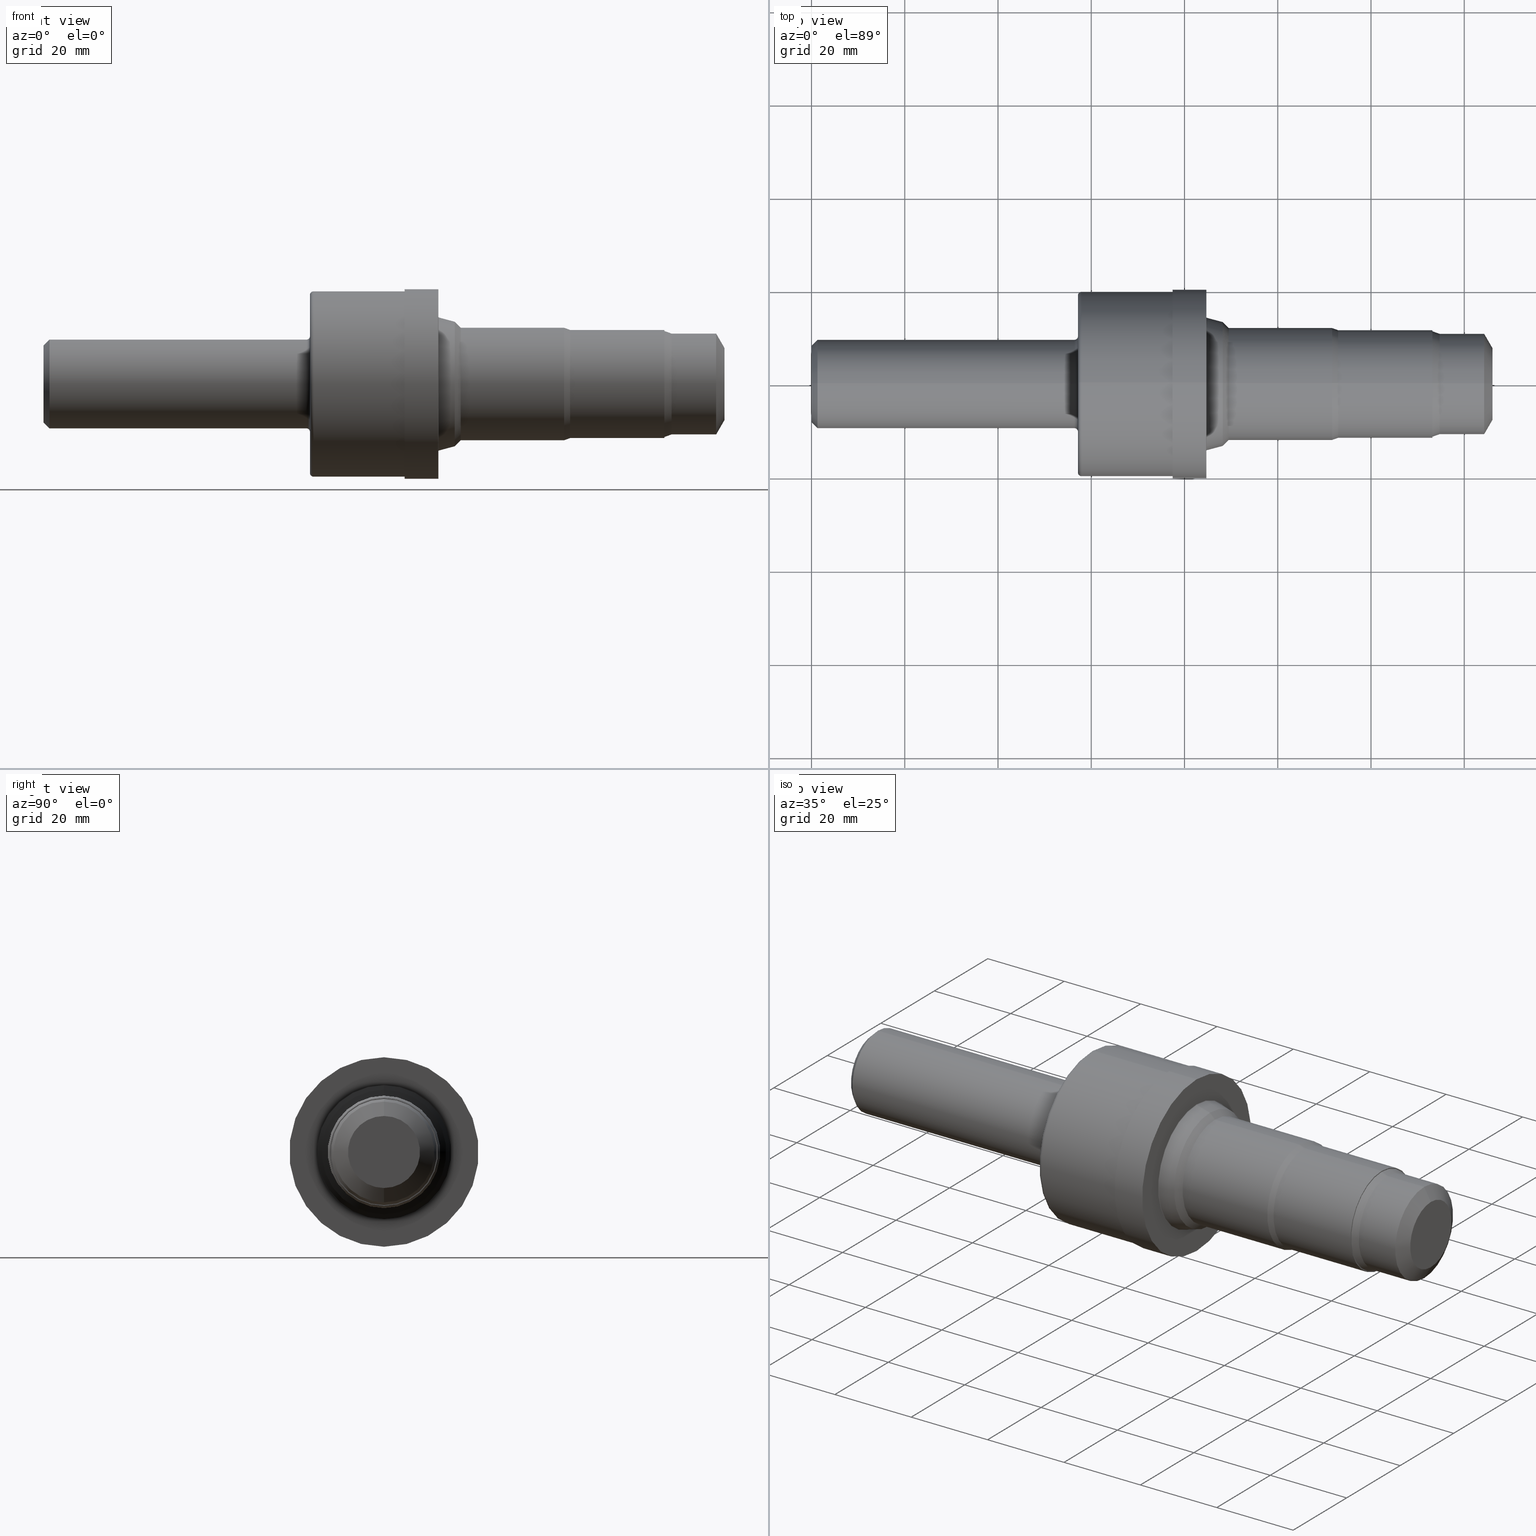
[diagram: canonical four-view strip — front | top / right | iso, engineering-drawing reading convention]
A machine part, canonical four-view strip (front | top / right | iso — engineering-drawing reading convention). The complete STEP part file that produces these views, byte-faithful:
ISO-10303-21;
HEADER;
FILE_DESCRIPTION (( 'STEP AP214' ),
    '1' );
FILE_NAME ('C12-3-ROUGH-X8.STEP',
    '2020-02-24T17:43:32',
    ( '' ),
    ( '' ),
    'SwSTEP 2.0',
    'SolidWorks 2018',
    '' );
FILE_SCHEMA (( 'AUTOMOTIVE_DESIGN' ));
ENDSEC;

DATA;
#1 = DIRECTION ( 'NONE',  ( 0.0000000000000000000, 0.0000000000000000000, 1.000000000000000000 ) ) ;
#2 = CARTESIAN_POINT ( 'NONE',  ( 0.05000000000000000278, 4.590588526603856213E-17, -0.3748500000000000165 ) ) ;
#3 = CARTESIAN_POINT ( 'NONE',  ( 5.750000000000000000, 0.0000000000000000000, 0.0000000000000000000 ) ) ;
#4 = EDGE_CURVE ( 'NONE', #400, #403, #378, .T. ) ;
#5 = DIRECTION ( 'NONE',  ( 0.0000000000000000000, 0.0000000000000000000, 1.000000000000000000 ) ) ;
#6 = ORIENTED_EDGE ( 'NONE', *, *, #958, .F. ) ;
#7 = AXIS2_PLACEMENT_3D ( 'NONE', #647, #249, #114 ) ;
#8 = VERTEX_POINT ( 'NONE', #755 ) ;
#9 = ORIENTED_EDGE ( 'NONE', *, *, #741, .F. ) ;
#10 = CARTESIAN_POINT ( 'NONE',  ( 2.220000000000000195, 0.0000000000000000000, 0.4048500000000005983 ) ) ;
#11 = CONICAL_SURFACE ( 'NONE', #480, 0.3041564434701778397, 1.047197551196600074 ) ;
#12 = VECTOR ( 'NONE', #179, 39.37007874015748854 ) ;
#13 = CARTESIAN_POINT ( 'NONE',  ( 5.679999999999999716, 5.209647483572839855E-17, -0.4254000000000000004 ) ) ;
#14 = ORIENTED_EDGE ( 'NONE', *, *, #136, .T. ) ;
#15 = ORIENTED_EDGE ( 'NONE', *, *, #291, .F. ) ;
#16 = CARTESIAN_POINT ( 'NONE',  ( 5.241999999999999105, 0.4563999999999999724, 0.0000000000000000000 ) ) ;
#17 = AXIS2_PLACEMENT_3D ( 'NONE', #3, #269, #274 ) ;
#18 = ADVANCED_FACE ( 'NONE', ( #177, #940 ), #560, .F. ) ;
#19 = ORIENTED_EDGE ( 'NONE', *, *, #942, .F. ) ;
#20 = FILL_AREA_STYLE ('',( #232 ) ) ;
#21 = LINE ( 'NONE', #558, #405 ) ;
#22 = DIRECTION ( 'NONE',  ( -1.000000000000000000, -0.0000000000000000000, -0.0000000000000000000 ) ) ;
#23 = CARTESIAN_POINT ( 'NONE',  ( 0.0000000000000000000, 0.0000000000000000000, 0.0000000000000000000 ) ) ;
#24 = CARTESIAN_POINT ( 'NONE',  ( 0.05000000000000000278, 4.590588526603853748E-17, 0.3748500000000000165 ) ) ;
#25 = ADVANCED_FACE ( 'NONE', ( #578 ), #915, .T. ) ;
#26 = EDGE_LOOP ( 'NONE', ( #633, #780, #216, #874 ) ) ;
#27 = DIRECTION ( 'NONE',  ( 1.000000000000000000, 0.0000000000000000000, 0.0000000000000000000 ) ) ;
#28 = ORIENTED_EDGE ( 'NONE', *, *, #419, .F. ) ;
#29 = ADVANCED_FACE ( 'NONE', ( #549 ), #359, .T. ) ;
#30 = VECTOR ( 'NONE', #409, 39.37007874015748854 ) ;
#31 = AXIS2_PLACEMENT_3D ( 'NONE', #782, #341, #856 ) ;
#32 = CARTESIAN_POINT ( 'NONE',  ( 3.339558857161730288, 0.0000000000000000000, 0.0000000000000000000 ) ) ;
#33 = DIRECTION ( 'NONE',  ( 0.0000000000000000000, 0.0000000000000000000, 1.000000000000000000 ) ) ;
#34 = ORIENTED_EDGE ( 'NONE', *, *, #471, .T. ) ;
#35 = ADVANCED_FACE ( 'NONE', ( #150 ), #273, .T. ) ;
#36 = CARTESIAN_POINT ( 'NONE',  ( 5.303999999999998494, 0.0000000000000000000, 0.4254000000000000004 ) ) ;
#37 = ADVANCED_FACE ( 'NONE', ( #743 ), #650, .T. ) ;
#38 = DIRECTION ( 'NONE',  ( 1.000000000000000000, 0.0000000000000000000, 0.0000000000000000000 ) ) ;
#39 = ADVANCED_FACE ( 'NONE', ( #329 ), #246, .F. ) ;
#40 = ADVANCED_FACE ( 'NONE', ( #726 ), #245, .T. ) ;
#41 = DIRECTION ( 'NONE',  ( 0.0000000000000000000, 0.0000000000000000000, 1.000000000000000000 ) ) ;
#42 = ADVANCED_FACE ( 'NONE', ( #836 ), #422, .T. ) ;
#43 = ORIENTED_EDGE ( 'NONE', *, *, #716, .T. ) ;
#44 = ADVANCED_FACE ( 'NONE', ( #466 ), #11, .T. ) ;
#45 = CARTESIAN_POINT ( 'NONE',  ( 5.241999999999999105, 5.589287991308519741E-17, -0.4563999999999999724 ) ) ;
#46 = AXIS2_PLACEMENT_3D ( 'NONE', #536, #446, #852 ) ;
#47 = TOROIDAL_SURFACE ( 'NONE', #211, 0.5685049524098423346, 0.007499999999999629359 ) ;
#48 = CIRCLE ( 'NONE', #208, 0.4563999999999999724 ) ;
#49 = ADVANCED_FACE ( 'NONE', ( #617 ), #75, .F. ) ;
#50 = AXIS2_PLACEMENT_3D ( 'NONE', #239, #757, #313 ) ;
#51 = EDGE_LOOP ( 'NONE', ( #924, #791 ) ) ;
#52 = ORIENTED_EDGE ( 'NONE', *, *, #445, .F. ) ;
#53 = ADVANCED_FACE ( 'NONE', ( #220 ), #47, .F. ) ;
#54 = ADVANCED_FACE ( 'NONE', ( #597 ), #431, .F. ) ;
#55 = CARTESIAN_POINT ( 'NONE',  ( 0.0000000000000000000, 0.0000000000000000000, 0.8000000000000000444 ) ) ;
#56 = LINE ( 'NONE', #717, #818 ) ;
#57 = EDGE_CURVE ( 'NONE', #512, #709, #441, .T. ) ;
#58 = ADVANCED_FACE ( 'NONE', ( #794 ), #765, .T. ) ;
#59 = DIRECTION ( 'NONE',  ( -1.000000000000000000, -0.0000000000000000000, -0.0000000000000000000 ) ) ;
#60 = CARTESIAN_POINT ( 'NONE',  ( 5.750000000000000000, 0.0000000000000000000, 0.0000000000000000000 ) ) ;
#61 = ADVANCED_FACE ( 'NONE', ( #395 ), #935, .T. ) ;
#62 = LINE ( 'NONE', #181, #30 ) ;
#63 = ADVANCED_FACE ( 'NONE', ( #952 ), #546, .T. ) ;
#64 = PRESENTATION_LAYER_ASSIGNMENT (  '', '', ( #76 ) ) ;
#65 = DIRECTION ( 'NONE',  ( -1.000000000000000000, -0.0000000000000000000, -0.0000000000000000000 ) ) ;
#66 = EDGE_CURVE ( 'NONE', #403, #400, #738, .T. ) ;
#67 = ORIENTED_EDGE ( 'NONE', *, *, #784, .T. ) ;
#68 = ADVANCED_FACE ( 'NONE', ( #812, #198 ), #315, .F. ) ;
#69 = SURFACE_STYLE_FILL_AREA ( #20 ) ;
#70 = ADVANCED_FACE ( 'NONE', ( #374 ), #910, .T. ) ;
#71 = EDGE_CURVE ( 'NONE', #742, #613, #147, .T. ) ;
#72 = ADVANCED_FACE ( 'NONE', ( #174 ), #325, .T. ) ;
#73 = ORIENTED_EDGE ( 'NONE', *, *, #888, .F. ) ;
#74 = CARTESIAN_POINT ( 'NONE',  ( 5.241999999999999105, 0.0000000000000000000, 0.0000000000000000000 ) ) ;
#75 = TOROIDAL_SURFACE ( 'NONE', #636, 0.4048500000000005983, 0.02999999999999995379 ) ;
#76 = STYLED_ITEM ( 'NONE', ( #235 ), #634 ) ;
#77 = ORIENTED_EDGE ( 'NONE', *, *, #803, .T. ) ;
#78 = LINE ( 'NONE', #55, #841 ) ;
#79 = AXIS2_PLACEMENT_3D ( 'NONE', #165, #168, #228 ) ;
#80 = AXIS2_PLACEMENT_3D ( 'NONE', #250, #282, #209 ) ;
#81 = ORIENTED_EDGE ( 'NONE', *, *, #811, .T. ) ;
#82 = ORIENTED_EDGE ( 'NONE', *, *, #419, .T. ) ;
#83 = VECTOR ( 'NONE', #840, 39.37007874015748143 ) ;
#84 = DIRECTION ( 'NONE',  ( 0.0000000000000000000, 0.0000000000000000000, 1.000000000000000000 ) ) ;
#85 = DIRECTION ( 'NONE',  ( 0.0000000000000000000, 0.0000000000000000000, 1.000000000000000000 ) ) ;
#86 = ADVANCED_FACE ( 'NONE', ( #574 ), #503, .T. ) ;
#87 = CARTESIAN_POINT ( 'NONE',  ( 4.447103080001856945, 0.0000000000000000000, 0.0000000000000000000 ) ) ;
#88 = CARTESIAN_POINT ( 'NONE',  ( 0.0000000000000000000, 0.0000000000000000000, 0.4254000000000000004 ) ) ;
#89 = DIRECTION ( 'NONE',  ( -0.0000000000000000000, 0.0000000000000000000, 1.000000000000000000 ) ) ;
#90 = EDGE_LOOP ( 'NONE', ( #443, #815, #224, #838 ) ) ;
#91 = CIRCLE ( 'NONE', #672, 0.4048500000000005983 ) ;
#92 = CARTESIAN_POINT ( 'NONE',  ( 5.679999999999999716, 0.0000000000000000000, 0.0000000000000000000 ) ) ;
#93 = CARTESIAN_POINT ( 'NONE',  ( 3.334000000000000075, 0.0000000000000000000, 0.0000000000000000000 ) ) ;
#94 = DIRECTION ( 'NONE',  ( 0.0000000000000000000, 0.0000000000000000000, -1.000000000000000000 ) ) ;
#95 = AXIS2_PLACEMENT_3D ( 'NONE', #582, #59, #430 ) ;
#96 = DIRECTION ( 'NONE',  ( -1.000000000000000000, -0.0000000000000000000, -0.0000000000000000000 ) ) ;
#97 = ADVANCED_FACE ( 'NONE', ( #723 ), #357, .T. ) ;
#98 = DIRECTION ( 'NONE',  ( -1.000000000000000000, -0.0000000000000000000, -0.0000000000000000000 ) ) ;
#99 = DIRECTION ( 'NONE',  ( 0.0000000000000000000, 0.0000000000000000000, 1.000000000000000000 ) ) ;
#100 = ADVANCED_FACE ( 'NONE', ( #702 ), #115, .T. ) ;
#101 = CARTESIAN_POINT ( 'NONE',  ( 0.0000000000000000000, 0.0000000000000000000, 0.0000000000000000000 ) ) ;
#102 = CARTESIAN_POINT ( 'NONE',  ( 2.250000000000000000, 0.0000000000000000000, 0.4048500000000005983 ) ) ;
#103 = DIRECTION ( 'NONE',  ( -1.000000000000000000, -0.0000000000000000000, -0.0000000000000000000 ) ) ;
#104 = ORIENTED_EDGE ( 'NONE', *, *, #338, .F. ) ;
#105 = AXIS2_PLACEMENT_3D ( 'NONE', #793, #355, #276 ) ;
#106 = ORIENTED_EDGE ( 'NONE', *, *, #610, .F. ) ;
#107 = EDGE_CURVE ( 'NONE', #437, #318, #882, .T. ) ;
#108 = CARTESIAN_POINT ( 'NONE',  ( 3.048999999999999488, 0.0000000000000000000, 0.8000000000000000444 ) ) ;
#109 = CONICAL_SURFACE ( 'NONE', #105, 0.4563999999999999724, 0.3490658503988593453 ) ;
#110 = DIRECTION ( 'NONE',  ( -1.000000000000000000, -0.0000000000000000000, -0.0000000000000000000 ) ) ;
#111 = CARTESIAN_POINT ( 'NONE',  ( 0.05000000000000000278, 0.0000000000000000000, 0.3748500000000000165 ) ) ;
#112 = CYLINDRICAL_SURFACE ( 'NONE', #963, 0.4749999999999999778 ) ;
#113 = EDGE_LOOP ( 'NONE', ( #328, #180 ) ) ;
#114 = DIRECTION ( 'NONE',  ( -0.0000000000000000000, 0.0000000000000000000, 1.000000000000000000 ) ) ;
#115 = CYLINDRICAL_SURFACE ( 'NONE', #361, 0.7825000000000000844 ) ;
#116 = VERTEX_POINT ( 'NONE', #13 ) ;
#117 = VECTOR ( 'NONE', #972, 39.37007874015748143 ) ;
#118 = CARTESIAN_POINT ( 'NONE',  ( 0.0000000000000000000, 0.0000000000000000000, 0.0000000000000000000 ) ) ;
#119 = VERTEX_POINT ( 'NONE', #108 ) ;
#120 = AXIS2_PLACEMENT_3D ( 'NONE', #971, #828, #749 ) ;
#121 = ORIENTED_EDGE ( 'NONE', *, *, #254, .T. ) ;
#122 = CARTESIAN_POINT ( 'NONE',  ( 0.0000000000000000000, 0.0000000000000000000, 0.0000000000000000000 ) ) ;
#123 = EDGE_CURVE ( 'NONE', #231, #164, #522, .T. ) ;
#124 = DIRECTION ( 'NONE',  ( -1.000000000000000000, -0.0000000000000000000, -0.0000000000000000000 ) ) ;
#125 = DIRECTION ( 'NONE',  ( -1.000000000000000000, -0.0000000000000000000, -0.0000000000000000000 ) ) ;
#126 = EDGE_LOOP ( 'NONE', ( #463, #121 ) ) ;
#127 = DIRECTION ( 'NONE',  ( -1.000000000000000000, -0.0000000000000000000, -0.0000000000000000000 ) ) ;
#128 = EDGE_LOOP ( 'NONE', ( #929, #367, #566, #756 ) ) ;
#129 = DIRECTION ( 'NONE',  ( 0.0000000000000000000, 0.0000000000000000000, 1.000000000000000000 ) ) ;
#130 = CIRCLE ( 'NONE', #306, 0.5257730114445050562 ) ;
#131 = CARTESIAN_POINT ( 'NONE',  ( 0.0000000000000000000, 0.0000000000000000000, 0.0000000000000000000 ) ) ;
#132 = ORIENTED_EDGE ( 'NONE', *, *, #888, .T. ) ;
#133 = DIRECTION ( 'NONE',  ( 0.0000000000000000000, 0.0000000000000000000, 1.000000000000000000 ) ) ;
#134 = VECTOR ( 'NONE', #839, 39.37007874015748143 ) ;
#135 = CIRCLE ( 'NONE', #162, 0.4749999999999999778 ) ;
#136 = EDGE_CURVE ( 'NONE', #231, #949, #868, .T. ) ;
#137 = CIRCLE ( 'NONE', #580, 0.5685049524098423346 ) ;
#138 = AXIS2_PLACEMENT_3D ( 'NONE', #101, #616, #467 ) ;
#139 = CONICAL_SURFACE ( 'NONE', #382, 0.3748500000000000165, 0.7853981633974470578 ) ;
#140 = ORIENTED_EDGE ( 'NONE', *, *, #373, .T. ) ;
#141 = CARTESIAN_POINT ( 'NONE',  ( 0.0000000000000000000, 4.284426826817016124E-17, 0.3248500000000001386 ) ) ;
#142 = EDGE_LOOP ( 'NONE', ( #196, #732, #951, #371 ) ) ;
#143 = AXIS2_PLACEMENT_3D ( 'NONE', #240, #225, #84 ) ;
#144 = CARTESIAN_POINT ( 'NONE',  ( 3.522773011444504387, 5.817072295949927179E-17, -0.4749999999999999778 ) ) ;
#145 = EDGE_CURVE ( 'NONE', #810, #275, #285, .T. ) ;
#146 = ORIENTED_EDGE ( 'NONE', *, *, #511, .F. ) ;
#147 = CIRCLE ( 'NONE', #664, 0.3041564434701778397 ) ;
#148 = LINE ( 'NONE', #303, #724 ) ;
#149 = EDGE_CURVE ( 'NONE', #641, #450, #677, .T. ) ;
#150 = FACE_OUTER_BOUND ( 'NONE', #586, .T. ) ;
#151 = CARTESIAN_POINT ( 'NONE',  ( 3.048999999999999488, 9.582861203328039197E-17, -0.7825000000000000844 ) ) ;
#152 = CIRCLE ( 'NONE', #632, 0.4749999999999999778 ) ;
#153 = CARTESIAN_POINT ( 'NONE',  ( 5.241999999999999105, 0.0000000000000000000, 0.0000000000000000000 ) ) ;
#154 = AXIS2_PLACEMENT_3D ( 'NONE', #481, #27, #849 ) ;
#155 = CARTESIAN_POINT ( 'NONE',  ( 2.250000000000000000, 0.7525000000000000577, 0.0000000000000000000 ) ) ;
#156 = ORIENTED_EDGE ( 'NONE', *, *, #248, .T. ) ;
#157 = CYLINDRICAL_SURFACE ( 'NONE', #669, 0.8000000000000000444 ) ;
#158 = DIRECTION ( 'NONE',  ( 0.0000000000000000000, 0.0000000000000000000, 1.000000000000000000 ) ) ;
#159 = ORIENTED_EDGE ( 'NONE', *, *, #551, .F. ) ;
#160 = SHAPE_DEFINITION_REPRESENTATION ( #305, #634 ) ;
#161 = CARTESIAN_POINT ( 'NONE',  ( 4.447103080001856945, 0.0000000000000000000, 0.0000000000000000000 ) ) ;
#162 = AXIS2_PLACEMENT_3D ( 'NONE', #554, #372, #964 ) ;
#163 = ADVANCED_FACE ( 'NONE', ( #659, #302 ), #627, .F. ) ;
#164 = VERTEX_POINT ( 'NONE', #111 ) ;
#165 = CARTESIAN_POINT ( 'NONE',  ( 3.471999999999999531, 0.0000000000000000000, 0.0000000000000000000 ) ) ;
#166 = EDGE_CURVE ( 'NONE', #742, #116, #259, .T. ) ;
#167 = CARTESIAN_POINT ( 'NONE',  ( 3.471999999999999531, 0.0000000000000000000, 0.0000000000000000000 ) ) ;
#168 = DIRECTION ( 'NONE',  ( -1.000000000000000000, -0.0000000000000000000, -0.0000000000000000000 ) ) ;
#169 = PLANE ( 'NONE',  #7 ) ;
#170 = DIRECTION ( 'NONE',  ( 1.000000000000000000, 0.0000000000000000000, 0.0000000000000000000 ) ) ;
#171 = DIRECTION ( 'NONE',  ( 0.0000000000000000000, 0.0000000000000000000, 1.000000000000000000 ) ) ;
#172 = CARTESIAN_POINT ( 'NONE',  ( 3.334000000000000075, 0.0000000000000000000, 0.0000000000000000000 ) ) ;
#173 = EDGE_LOOP ( 'NONE', ( #661, #854, #666, #490 ) ) ;
#174 = FACE_OUTER_BOUND ( 'NONE', #416, .T. ) ;
#175 = CIRCLE ( 'NONE', #761, 0.02999999999999995379 ) ;
#176 = CARTESIAN_POINT ( 'NONE',  ( 5.241999999999999105, 0.0000000000000000000, 0.4563999999999999724 ) ) ;
#177 = FACE_BOUND ( 'NONE', #601, .T. ) ;
#178 = AXIS2_PLACEMENT_3D ( 'NONE', #930, #491, #41 ) ;
#179 = DIRECTION ( 'NONE',  ( 0.7071067811865483499, 8.659560562354922997E-17, 0.7071067811865465735 ) ) ;
#180 = ORIENTED_EDGE ( 'NONE', *, *, #71, .F. ) ;
#181 = CARTESIAN_POINT ( 'NONE',  ( 3.471999999999999531, 6.438862355435778537E-17, -0.5257730114445050562 ) ) ;
#182 = CIRCLE ( 'NONE', #345, 0.4563999999999999724 ) ;
#183 = DIRECTION ( 'NONE',  ( -1.000000000000000000, -0.0000000000000000000, -0.0000000000000000000 ) ) ;
#184 = DIRECTION ( 'NONE',  ( -1.000000000000000000, -0.0000000000000000000, -0.0000000000000000000 ) ) ;
#185 = AXIS2_PLACEMENT_3D ( 'NONE', #872, #607, #869 ) ;
#186 = ORIENTED_EDGE ( 'NONE', *, *, #291, .T. ) ;
#187 = DIRECTION ( 'NONE',  ( 0.0000000000000000000, 0.0000000000000000000, 1.000000000000000000 ) ) ;
#188 = DIRECTION ( 'NONE',  ( 0.0000000000000000000, 0.0000000000000000000, 1.000000000000000000 ) ) ;
#189 = ORIENTED_EDGE ( 'NONE', *, *, #497, .T. ) ;
#190 = DIRECTION ( 'NONE',  ( -1.000000000000000000, -0.0000000000000000000, -0.0000000000000000000 ) ) ;
#191 =( GEOMETRIC_REPRESENTATION_CONTEXT ( 3 ) GLOBAL_UNCERTAINTY_ASSIGNED_CONTEXT ( ( #300 ) ) GLOBAL_UNIT_ASSIGNED_CONTEXT ( ( #651, #399, #465 ) ) REPRESENTATION_CONTEXT ( 'NONE', 'WORKASPACE' ) );
#192 = ORIENTED_EDGE ( 'NONE', *, *, #697, .T. ) ;
#193 = DIRECTION ( 'NONE',  ( -1.000000000000000000, -0.0000000000000000000, -0.0000000000000000000 ) ) ;
#194 = CARTESIAN_POINT ( 'NONE',  ( 3.522773011444504387, 0.0000000000000000000, 0.0000000000000000000 ) ) ;
#195 = DIRECTION ( 'NONE',  ( -1.000000000000000000, -0.0000000000000000000, -0.0000000000000000000 ) ) ;
#196 = ORIENTED_EDGE ( 'NONE', *, *, #462, .F. ) ;
#197 = EDGE_CURVE ( 'NONE', #709, #512, #452, .T. ) ;
#198 = FACE_OUTER_BOUND ( 'NONE', #126, .T. ) ;
#199 = CIRCLE ( 'NONE', #461, 0.4254000000000000004 ) ;
#200 = DIRECTION ( 'NONE',  ( 0.0000000000000000000, -1.000000000000000000, 0.0000000000000000000 ) ) ;
#201 = EDGE_LOOP ( 'NONE', ( #192, #758 ) ) ;
#202 = EDGE_LOOP ( 'NONE', ( #146, #657, #605, #81 ) ) ;
#203 = CARTESIAN_POINT ( 'NONE',  ( 4.447103080001856945, 0.0000000000000000000, 0.4563999999999999724 ) ) ;
#204 = DIRECTION ( 'NONE',  ( -1.000000000000000000, -0.0000000000000000000, -0.0000000000000000000 ) ) ;
#205 = EDGE_CURVE ( 'NONE', #949, #934, #638, .T. ) ;
#206 = VECTOR ( 'NONE', #705, 39.37007874015748854 ) ;
#207 = EDGE_LOOP ( 'NONE', ( #468, #670, #104, #296 ) ) ;
#208 = AXIS2_PLACEMENT_3D ( 'NONE', #161, #127, #451 ) ;
#209 = DIRECTION ( 'NONE',  ( 0.0000000000000000000, 0.0000000000000000000, 1.000000000000000000 ) ) ;
#210 = FACE_OUTER_BOUND ( 'NONE', #128, .T. ) ;
#211 = AXIS2_PLACEMENT_3D ( 'NONE', #529, #833, #540 ) ;
#212 = ORIENTED_EDGE ( 'NONE', *, *, #532, .F. ) ;
#213 = AXIS2_PLACEMENT_3D ( 'NONE', #653, #200, #719 ) ;
#214 = EDGE_CURVE ( 'NONE', #8, #403, #62, .T. ) ;
#215 = CARTESIAN_POINT ( 'NONE',  ( 2.250000000000000000, 0.0000000000000000000, 0.0000000000000000000 ) ) ;
#216 = ORIENTED_EDGE ( 'NONE', *, *, #721, .T. ) ;
#217 = EDGE_LOOP ( 'NONE', ( #353, #706, #939, #28 ) ) ;
#218 = VERTEX_POINT ( 'NONE', #557 ) ;
#219 = AXIS2_PLACEMENT_3D ( 'NONE', #718, #125, #129 ) ;
#220 = FACE_OUTER_BOUND ( 'NONE', #594, .T. ) ;
#221 = DIRECTION ( 'NONE',  ( -1.000000000000000000, -0.0000000000000000000, -0.0000000000000000000 ) ) ;
#222 = LINE ( 'NONE', #24, #12 ) ;
#223 = ADVANCED_FACE ( 'NONE', ( #806 ), #781, .T. ) ;
#224 = ORIENTED_EDGE ( 'NONE', *, *, #57, .F. ) ;
#225 = DIRECTION ( 'NONE',  ( -1.000000000000000000, -0.0000000000000000000, -0.0000000000000000000 ) ) ;
#226 = AXIS2_PLACEMENT_3D ( 'NONE', #281, #800, #866 ) ;
#227 = LINE ( 'NONE', #826, #944 ) ;
#228 = DIRECTION ( 'NONE',  ( 0.0000000000000000000, 0.0000000000000000000, 1.000000000000000000 ) ) ;
#229 = ORIENTED_EDGE ( 'NONE', *, *, #149, .T. ) ;
#230 = CARTESIAN_POINT ( 'NONE',  ( 2.279999999999999805, 9.215467163583834049E-17, -0.7525000000000000577 ) ) ;
#231 = VERTEX_POINT ( 'NONE', #262 ) ;
#232 = FILL_AREA_STYLE_COLOUR ( '', #682 ) ;
#233 = FACE_OUTER_BOUND ( 'NONE', #895, .T. ) ;
#234 = ADVANCED_FACE ( 'NONE', ( #969 ), #848, .F. ) ;
#235 = PRESENTATION_STYLE_ASSIGNMENT (( #469 ) ) ;
#236 = DIRECTION ( 'NONE',  ( 0.0000000000000000000, 0.0000000000000000000, -1.000000000000000000 ) ) ;
#237 = DIRECTION ( 'NONE',  ( 0.0000000000000000000, 0.0000000000000000000, 1.000000000000000000 ) ) ;
#238 = VERTEX_POINT ( 'NONE', #707 ) ;
#239 = CARTESIAN_POINT ( 'NONE',  ( 0.0000000000000000000, 0.0000000000000000000, 0.0000000000000000000 ) ) ;
#240 = CARTESIAN_POINT ( 'NONE',  ( 2.220000000000000195, 0.0000000000000000000, 0.0000000000000000000 ) ) ;
#241 = DIRECTION ( 'NONE',  ( -1.000000000000000000, -0.0000000000000000000, -0.0000000000000000000 ) ) ;
#242 = CARTESIAN_POINT ( 'NONE',  ( 0.0000000000000000000, 0.0000000000000000000, 0.0000000000000000000 ) ) ;
#243 = ORIENTED_EDGE ( 'NONE', *, *, #205, .F. ) ;
#244 = CARTESIAN_POINT ( 'NONE',  ( 5.303999999999998494, 5.209647483572840471E-17, -0.4254000000000000004 ) ) ;
#245 = CYLINDRICAL_SURFACE ( 'NONE', #829, 0.4563999999999999724 ) ;
#246 = PLANE ( 'NONE',  #625 ) ;
#247 = ORIENTED_EDGE ( 'NONE', *, *, #644, .T. ) ;
#248 = EDGE_CURVE ( 'NONE', #769, #722, #412, .T. ) ;
#249 = DIRECTION ( 'NONE',  ( -1.000000000000000000, 0.0000000000000000000, -0.0000000000000000000 ) ) ;
#250 = CARTESIAN_POINT ( 'NONE',  ( 5.303999999999998494, 0.0000000000000000000, 0.0000000000000000000 ) ) ;
#251 = DIRECTION ( 'NONE',  ( 0.0000000000000000000, 0.0000000000000000000, 1.000000000000000000 ) ) ;
#252 = LINE ( 'NONE', #36, #801 ) ;
#253 = DIRECTION ( 'NONE',  ( -1.000000000000000000, -0.0000000000000000000, -0.0000000000000000000 ) ) ;
#254 = EDGE_CURVE ( 'NONE', #238, #218, #606, .T. ) ;
#255 = DIRECTION ( 'NONE',  ( 0.0000000000000000000, -1.224646799147354933E-16, 1.000000000000000000 ) ) ;
#256 = CARTESIAN_POINT ( 'NONE',  ( 0.0000000000000000000, 0.0000000000000000000, 0.4749999999999999778 ) ) ;
#257 = ADVANCED_FACE ( 'NONE', ( #233 ), #587, .T. ) ;
#258 = CARTESIAN_POINT ( 'NONE',  ( 2.279999999999999805, 0.0000000000000000000, 0.0000000000000000000 ) ) ;
#259 = LINE ( 'NONE', #623, #823 ) ;
#260 = CARTESIAN_POINT ( 'NONE',  ( 5.750000000000000000, 4.467244816465400725E-17, -0.3041564434701778397 ) ) ;
#261 = ADVANCED_FACE ( 'NONE', ( #947 ), #563, .T. ) ;
#262 = CARTESIAN_POINT ( 'NONE',  ( 2.220000000000000195, 0.0000000000000000000, 0.3748500000000006271 ) ) ;
#263 = ORIENTED_EDGE ( 'NONE', *, *, #697, .F. ) ;
#264 = ADVANCED_FACE ( 'NONE', ( #385 ), #157, .T. ) ;
#265 = EDGE_CURVE ( 'NONE', #934, #164, #365, .T. ) ;
#266 = DIRECTION ( 'NONE',  ( -1.000000000000000000, -0.0000000000000000000, -0.0000000000000000000 ) ) ;
#267 = PRESENTATION_STYLE_ASSIGNMENT (( #699 ) ) ;
#268 = ADVANCED_FACE ( 'NONE', ( #752 ), #139, .T. ) ;
#269 = DIRECTION ( 'NONE',  ( -1.000000000000000000, -0.0000000000000000000, -0.0000000000000000000 ) ) ;
#270 = MECHANICAL_DESIGN_GEOMETRIC_PRESENTATION_REPRESENTATION (  '', ( #496 ), #191 ) ;
#271 = EDGE_CURVE ( 'NONE', #392, #850, #343, .T. ) ;
#272 = DIRECTION ( 'NONE',  ( 0.0000000000000000000, 0.0000000000000000000, 1.000000000000000000 ) ) ;
#273 = CONICAL_SURFACE ( 'NONE', #464, 0.5257730114445050562, 0.2617993877991525720 ) ;
#274 = DIRECTION ( 'NONE',  ( 0.0000000000000000000, 0.0000000000000000000, 1.000000000000000000 ) ) ;
#275 = VERTEX_POINT ( 'NONE', #715 ) ;
#276 = DIRECTION ( 'NONE',  ( 0.0000000000000000000, 0.0000000000000000000, 1.000000000000000000 ) ) ;
#277 = AXIS2_PLACEMENT_3D ( 'NONE', #683, #921, #960 ) ;
#278 = ADVANCED_FACE ( 'NONE', ( #210 ), #526, .T. ) ;
#279 = PRODUCT_DEFINITION_CONTEXT ( 'detailed design', #527, 'design' ) ;
#280 = CIRCLE ( 'NONE', #567, 0.8000000000000000444 ) ;
#281 = CARTESIAN_POINT ( 'NONE',  ( 4.447103080001856945, 0.0000000000000000000, 0.0000000000000000000 ) ) ;
#282 = DIRECTION ( 'NONE',  ( -1.000000000000000000, -0.0000000000000000000, -0.0000000000000000000 ) ) ;
#283 = ORIENTED_EDGE ( 'NONE', *, *, #123, .T. ) ;
#284 = ADVANCED_FACE ( 'NONE', ( #733 ), #112, .T. ) ;
#285 = LINE ( 'NONE', #323, #83 ) ;
#286 = LENGTH_MEASURE_WITH_UNIT ( LENGTH_MEASURE( 0.02539999999999999897 ), #876 );
#287 = ORIENTED_EDGE ( 'NONE', *, *, #507, .T. ) ;
#288 = DIRECTION ( 'NONE',  ( 0.0000000000000000000, 0.0000000000000000000, 1.000000000000000000 ) ) ;
#289 = ADVANCED_FACE ( 'NONE', ( #896 ), #535, .F. ) ;
#290 = ADVANCED_FACE ( 'NONE', ( #320 ), #109, .T. ) ;
#291 = EDGE_CURVE ( 'NONE', #512, #218, #299, .T. ) ;
#292 = CIRCLE ( 'NONE', #678, 0.02999999999999995379 ) ;
#293 = ADVANCED_FACE ( 'NONE', ( #878 ), #863, .T. ) ;
#294 = AXIS2_PLACEMENT_3D ( 'NONE', #635, #747, #893 ) ;
#295 = CARTESIAN_POINT ( 'NONE',  ( 0.0000000000000000000, 0.0000000000000000000, -0.3248500000000001386 ) ) ;
#296 = ORIENTED_EDGE ( 'NONE', *, *, #321, .F. ) ;
#297 = VERTEX_POINT ( 'NONE', #356 ) ;
#298 = MECHANICAL_DESIGN_GEOMETRIC_PRESENTATION_REPRESENTATION (  '', ( #76 ), #711 ) ;
#299 = CIRCLE ( 'NONE', #213, 0.02999999999999995379 ) ;
#300 = UNCERTAINTY_MEASURE_WITH_UNIT (LENGTH_MEASURE( 1.000000000000000082E-05 ), #651, 'distance_accuracy_value', 'NONE');
#301 = ORIENTED_EDGE ( 'NONE', *, *, #123, .F. ) ;
#302 = FACE_BOUND ( 'NONE', #201, .T. ) ;
#303 = CARTESIAN_POINT ( 'NONE',  ( 4.447103080001856945, 0.0000000000000000000, 0.4563999999999999724 ) ) ;
#304 = DIRECTION ( 'NONE',  ( -1.000000000000000000, -0.0000000000000000000, -0.0000000000000000000 ) ) ;
#305 = PRODUCT_DEFINITION_SHAPE ( 'NONE', 'NONE',  #797 ) ;
#306 = AXIS2_PLACEMENT_3D ( 'NONE', #645, #304, #237 ) ;
#307 = FACE_BOUND ( 'NONE', #51, .T. ) ;
#308 = EDGE_CURVE ( 'NONE', #392, #379, #694, .T. ) ;
#309 = DIRECTION ( 'NONE',  ( 0.0000000000000000000, 0.0000000000000000000, -1.000000000000000000 ) ) ;
#310 = ORIENTED_EDGE ( 'NONE', *, *, #777, .F. ) ;
#311 = EDGE_LOOP ( 'NONE', ( #948, #189, #390, #589 ) ) ;
#312 = DIRECTION ( 'NONE',  ( 0.0000000000000000000, 0.0000000000000000000, -1.000000000000000000 ) ) ;
#313 = DIRECTION ( 'NONE',  ( 0.0000000000000000000, 0.0000000000000000000, 1.000000000000000000 ) ) ;
#314 = EDGE_CURVE ( 'NONE', #861, #8, #498, .T. ) ;
#315 = PLANE ( 'NONE',  #873 ) ;
#316 = ORIENTED_EDGE ( 'NONE', *, *, #66, .T. ) ;
#317 = DIRECTION ( 'NONE',  ( -1.000000000000000000, -0.0000000000000000000, -0.0000000000000000000 ) ) ;
#318 = VERTEX_POINT ( 'NONE', #203 ) ;
#319 = DIRECTION ( 'NONE',  ( 0.0000000000000000000, 0.0000000000000000000, 1.000000000000000000 ) ) ;
#320 = FACE_OUTER_BOUND ( 'NONE', #643, .T. ) ;
#321 = EDGE_CURVE ( 'NONE', #850, #119, #78, .T. ) ;
#322 = DIRECTION ( 'NONE',  ( 0.0000000000000000000, 0.0000000000000000000, 1.000000000000000000 ) ) ;
#323 = CARTESIAN_POINT ( 'NONE',  ( 4.447103080001856945, 5.589287991308519741E-17, -0.4563999999999999724 ) ) ;
#324 = DIRECTION ( 'NONE',  ( -0.9396926207859095381, 4.188538737676951089E-17, -0.3420201433256653822 ) ) ;
#325 = CYLINDRICAL_SURFACE ( 'NONE', #922, 0.3748500000000003496 ) ;
#326 = CIRCLE ( 'NONE', #46, 0.7825000000000000844 ) ;
#327 = DIRECTION ( 'NONE',  ( -1.000000000000000000, 0.0000000000000000000, -0.0000000000000000000 ) ) ;
#328 = ORIENTED_EDGE ( 'NONE', *, *, #680, .F. ) ;
#329 = FACE_OUTER_BOUND ( 'NONE', #796, .T. ) ;
#330 = CARTESIAN_POINT ( 'NONE',  ( 3.048999999999999488, 0.0000000000000000000, 0.0000000000000000000 ) ) ;
#331 = AXIS2_PLACEMENT_3D ( 'NONE', #695, #662, #799 ) ;
#332 = DIRECTION ( 'NONE',  ( 0.0000000000000000000, 0.0000000000000000000, 1.000000000000000000 ) ) ;
#333 = DIRECTION ( 'NONE',  ( 0.0000000000000000000, -1.000000000000000000, 0.0000000000000000000 ) ) ;
#334 = SURFACE_SIDE_STYLE ('',( #69 ) ) ;
#335 = LINE ( 'NONE', #923, #708 ) ;
#336 = DIRECTION ( 'NONE',  ( 0.0000000000000000000, 0.0000000000000000000, 1.000000000000000000 ) ) ;
#337 = ORIENTED_EDGE ( 'NONE', *, *, #777, .T. ) ;
#338 = EDGE_CURVE ( 'NONE', #119, #379, #280, .T. ) ;
#339 = ORIENTED_EDGE ( 'NONE', *, *, #911, .T. ) ;
#340 = EDGE_LOOP ( 'NONE', ( #931, #426, #247, #714 ) ) ;
#341 = DIRECTION ( 'NONE',  ( -1.000000000000000000, -0.0000000000000000000, -0.0000000000000000000 ) ) ;
#342 = ADVANCED_FACE ( 'NONE', ( #473 ), #629, .T. ) ;
#343 = CIRCLE ( 'NONE', #456, 0.8000000000000000444 ) ;
#344 = CARTESIAN_POINT ( 'NONE',  ( 0.05000000000000000278, 0.0000000000000000000, 0.0000000000000000000 ) ) ;
#345 = AXIS2_PLACEMENT_3D ( 'NONE', #917, #928, #961 ) ;
#346 = ORIENTED_EDGE ( 'NONE', *, *, #214, .T. ) ;
#347 = DIMENSIONAL_EXPONENTS ( 1.000000000000000000, 0.0000000000000000000, 0.0000000000000000000, 0.0000000000000000000, 0.0000000000000000000, 0.0000000000000000000, 0.0000000000000000000 ) ;
#348 = UNCERTAINTY_MEASURE_WITH_UNIT (LENGTH_MEASURE( 1.000000000000000082E-05 ), #900, 'distance_accuracy_value', 'NONE');
#349 = CARTESIAN_POINT ( 'NONE',  ( 4.395999999999999908, 0.0000000000000000000, 0.0000000000000000000 ) ) ;
#350 = DIMENSIONAL_EXPONENTS ( 1.000000000000000000, 0.0000000000000000000, 0.0000000000000000000, 0.0000000000000000000, 0.0000000000000000000, 0.0000000000000000000, 0.0000000000000000000 ) ;
#351 = DIRECTION ( 'NONE',  ( -1.000000000000000000, -0.0000000000000000000, -0.0000000000000000000 ) ) ;
#352 = ADVANCED_FACE ( 'NONE', ( #447 ), #655, .T. ) ;
#353 = ORIENTED_EDGE ( 'NONE', *, *, #680, .T. ) ;
#354 = AXIS2_PLACEMENT_3D ( 'NONE', #330, #221, #158 ) ;
#355 = DIRECTION ( 'NONE',  ( -1.000000000000000000, -0.0000000000000000000, -0.0000000000000000000 ) ) ;
#356 = CARTESIAN_POINT ( 'NONE',  ( 5.241999999999999105, 5.486003172647825432E-17, -0.4479661545245041121 ) ) ;
#357 = CYLINDRICAL_SURFACE ( 'NONE', #138, 0.4254000000000000004 ) ;
#358 = CIRCLE ( 'NONE', #429, 0.007499999999999646706 ) ;
#359 = TOROIDAL_SURFACE ( 'NONE', #433, 0.7525000000000000577, 0.02999999999999995379 ) ;
#360 = CARTESIAN_POINT ( 'NONE',  ( 3.048999999999999488, 0.0000000000000000000, 0.0000000000000000000 ) ) ;
#361 = AXIS2_PLACEMENT_3D ( 'NONE', #692, #763, #171 ) ;
#362 = VECTOR ( 'NONE', #914, 39.37007874015748143 ) ;
#363 = CARTESIAN_POINT ( 'NONE',  ( 0.0000000000000000000, 0.0000000000000000000, 0.0000000000000000000 ) ) ;
#364 = AXIS2_PLACEMENT_3D ( 'NONE', #730, #802, #585 ) ;
#365 = CIRCLE ( 'NONE', #178, 0.3748500000000000165 ) ;
#366 = ORIENTED_EDGE ( 'NONE', *, *, #588, .T. ) ;
#367 = ORIENTED_EDGE ( 'NONE', *, *, #314, .T. ) ;
#368 = EDGE_CURVE ( 'NONE', #116, #641, #56, .T. ) ;
#369 = DIMENSIONAL_EXPONENTS ( 1.000000000000000000, 0.0000000000000000000, 0.0000000000000000000, 0.0000000000000000000, 0.0000000000000000000, 0.0000000000000000000, 0.0000000000000000000 ) ;
#370 = CARTESIAN_POINT ( 'NONE',  ( 0.0000000000000000000, 9.582861203328039197E-17, -0.7825000000000000844 ) ) ;
#371 = ORIENTED_EDGE ( 'NONE', *, *, #4, .T. ) ;
#372 = DIRECTION ( 'NONE',  ( -1.000000000000000000, -0.0000000000000000000, -0.0000000000000000000 ) ) ;
#373 = EDGE_CURVE ( 'NONE', #453, #8, #130, .T. ) ;
#374 = FACE_OUTER_BOUND ( 'NONE', #207, .T. ) ;
#375 = LINE ( 'NONE', #370, #548 ) ;
#376 = VERTEX_POINT ( 'NONE', #45 ) ;
#377 = DIRECTION ( 'NONE',  ( -0.9659258262890675351, 0.0000000000000000000, 0.2588190451025237926 ) ) ;
#378 = CIRCLE ( 'NONE', #331, 0.5612605087126746328 ) ;
#379 = VERTEX_POINT ( 'NONE', #402 ) ;
#380 = ORIENTED_EDGE ( 'NONE', *, *, #166, .F. ) ;
#381 = APPLICATION_PROTOCOL_DEFINITION ( 'draft international standard', 'automotive_design', 1998, #527 ) ;
#382 = AXIS2_PLACEMENT_3D ( 'NONE', #344, #38, #418 ) ;
#383 = LINE ( 'NONE', #907, #362 ) ;
#384 = ORIENTED_EDGE ( 'NONE', *, *, #516, .F. ) ;
#385 = FACE_OUTER_BOUND ( 'NONE', #652, .T. ) ;
#386 = DIRECTION ( 'NONE',  ( 0.0000000000000000000, 0.0000000000000000000, 1.000000000000000000 ) ) ;
#387 = ORIENTED_EDGE ( 'NONE', *, *, #149, .F. ) ;
#388 = AXIS2_PLACEMENT_3D ( 'NONE', #973, #902, #94 ) ;
#389 = DIRECTION ( 'NONE',  ( -1.000000000000000000, -0.0000000000000000000, -0.0000000000000000000 ) ) ;
#390 = ORIENTED_EDGE ( 'NONE', *, *, #414, .F. ) ;
#391 = DIRECTION ( 'NONE',  ( -1.000000000000000000, -0.0000000000000000000, -0.0000000000000000000 ) ) ;
#392 = VERTEX_POINT ( 'NONE', #534 ) ;
#393 = DIRECTION ( 'NONE',  ( -1.000000000000000000, -0.0000000000000000000, -0.0000000000000000000 ) ) ;
#394 = CARTESIAN_POINT ( 'NONE',  ( 0.0000000000000000000, 0.0000000000000000000, 0.4563999999999999724 ) ) ;
#395 = FACE_OUTER_BOUND ( 'NONE', #488, .T. ) ;
#396 = CIRCLE ( 'NONE', #859, 0.4563999999999999724 ) ;
#397 = PRODUCT_CONTEXT ( 'NONE', #957, 'mechanical' ) ;
#398 = EDGE_CURVE ( 'NONE', #450, #805, #252, .T. ) ;
#399 =( NAMED_UNIT ( * ) PLANE_ANGLE_UNIT ( ) SI_UNIT ( $, .RADIAN. ) );
#400 = VERTEX_POINT ( 'NONE', #545 ) ;
#401 = CARTESIAN_POINT ( 'NONE',  ( 2.220000000000000195, 0.0000000000000000000, 0.0000000000000000000 ) ) ;
#402 = CARTESIAN_POINT ( 'NONE',  ( 3.048999999999999488, 9.797174393178826150E-17, -0.8000000000000000444 ) ) ;
#403 = VERTEX_POINT ( 'NONE', #531 ) ;
#404 = CARTESIAN_POINT ( 'NONE',  ( 3.341499999999999471, 0.0000000000000000000, 0.0000000000000000000 ) ) ;
#405 = VECTOR ( 'NONE', #604, 39.37007874015748854 ) ;
#406 = ORIENTED_EDGE ( 'NONE', *, *, #881, .F. ) ;
#407 = CARTESIAN_POINT ( 'NONE',  ( 0.0000000000000000000, 0.0000000000000000000, 0.7825000000000000844 ) ) ;
#408 = CARTESIAN_POINT ( 'NONE',  ( 2.250000000000000000, 0.0000000000000000000, 0.0000000000000000000 ) ) ;
#409 = DIRECTION ( 'NONE',  ( -0.9659258262890675351, 3.169619151431801919E-17, -0.2588190451025237926 ) ) ;
#410 = EDGE_LOOP ( 'NONE', ( #384, #750 ) ) ;
#411 = CARTESIAN_POINT ( 'NONE',  ( 4.447103080001856945, 5.589287991308519741E-17, -0.4563999999999999724 ) ) ;
#412 = CIRCLE ( 'NONE', #905, 0.3248500000000001386 ) ;
#413 = PRODUCT ( 'C12-3-ROUGH-X8', 'C12-3-ROUGH-X8', '', ( #397 ) ) ;
#414 = EDGE_CURVE ( 'NONE', #579, #861, #428, .T. ) ;
#415 = DIRECTION ( 'NONE',  ( 0.0000000000000000000, 0.0000000000000000000, 1.000000000000000000 ) ) ;
#416 = EDGE_LOOP ( 'NONE', ( #243, #43, #283, #648 ) ) ;
#417 = DIRECTION ( 'NONE',  ( 0.0000000000000000000, 0.0000000000000000000, 1.000000000000000000 ) ) ;
#418 = DIRECTION ( 'NONE',  ( 0.0000000000000000000, 0.0000000000000000000, -1.000000000000000000 ) ) ;
#419 = EDGE_CURVE ( 'NONE', #613, #572, #21, .T. ) ;
#420 = ORIENTED_EDGE ( 'NONE', *, *, #308, .F. ) ;
#421 = VERTEX_POINT ( 'NONE', #626 ) ;
#422 = CONICAL_SURFACE ( 'NONE', #575, 0.4749999999999999778, 0.7853981633974476129 ) ;
#423 = LINE ( 'NONE', #407, #598 ) ;
#424 = AXIS2_PLACEMENT_3D ( 'NONE', #172, #193, #251 ) ;
#425 = AXIS2_PLACEMENT_3D ( 'NONE', #639, #266, #417 ) ;
#426 = ORIENTED_EDGE ( 'NONE', *, *, #511, .T. ) ;
#427 = CARTESIAN_POINT ( 'NONE',  ( 3.522773011444504387, 5.817072295949927179E-17, -0.4749999999999999778 ) ) ;
#428 = CIRCLE ( 'NONE', #835, 0.4749999999999999778 ) ;
#429 = AXIS2_PLACEMENT_3D ( 'NONE', #916, #333, #236 ) ;
#430 = DIRECTION ( 'NONE',  ( 0.0000000000000000000, 0.0000000000000000000, 1.000000000000000000 ) ) ;
#431 = PLANE ( 'NONE',  #569 ) ;
#432 = ORIENTED_EDGE ( 'NONE', *, *, #214, .F. ) ;
#433 = AXIS2_PLACEMENT_3D ( 'NONE', #897, #204, #772 ) ;
#434 = VECTOR ( 'NONE', #22, 39.37007874015748143 ) ;
#435 = COLOUR_RGB ( '',0.7529411764705882248, 0.7529411764705882248, 0.7529411764705882248 ) ;
#436 = ORIENTED_EDGE ( 'NONE', *, *, #698, .F. ) ;
#437 = VERTEX_POINT ( 'NONE', #176 ) ;
#438 = EDGE_CURVE ( 'NONE', #579, #453, #959, .T. ) ;
#439 = ORIENTED_EDGE ( 'NONE', *, *, #66, .F. ) ;
#440 = ORIENTED_EDGE ( 'NONE', *, *, #197, .T. ) ;
#441 = CIRCLE ( 'NONE', #364, 0.7825000000000000844 ) ;
#442 = FILL_AREA_STYLE_COLOUR ( '', #435 ) ;
#443 = ORIENTED_EDGE ( 'NONE', *, *, #958, .T. ) ;
#444 = AXIS2_PLACEMENT_3D ( 'NONE', #194, #568, #272 ) ;
#445 = EDGE_CURVE ( 'NONE', #722, #934, #603, .T. ) ;
#446 = DIRECTION ( 'NONE',  ( -1.000000000000000000, -0.0000000000000000000, -0.0000000000000000000 ) ) ;
#447 = FACE_OUTER_BOUND ( 'NONE', #311, .T. ) ;
#448 = CARTESIAN_POINT ( 'NONE',  ( 2.250000000000000000, 4.957982566348066292E-17, -0.4048500000000005983 ) ) ;
#449 = SURFACE_SIDE_STYLE ('',( #504 ) ) ;
#450 = VERTEX_POINT ( 'NONE', #748 ) ;
#451 = DIRECTION ( 'NONE',  ( 0.0000000000000000000, 0.0000000000000000000, 1.000000000000000000 ) ) ;
#452 = CIRCLE ( 'NONE', #768, 0.7825000000000000844 ) ;
#453 = VERTEX_POINT ( 'NONE', #759 ) ;
#454 = AXIS2_PLACEMENT_3D ( 'NONE', #489, #537, #539 ) ;
#455 = DIRECTION ( 'NONE',  ( 0.0000000000000000000, 0.0000000000000000000, 1.000000000000000000 ) ) ;
#456 = AXIS2_PLACEMENT_3D ( 'NONE', #789, #351, #860 ) ;
#457 = CIRCLE ( 'NONE', #17, 0.3041564434701778397 ) ;
#458 = CARTESIAN_POINT ( 'NONE',  ( 3.471999999999999531, 0.0000000000000000000, 0.5257730114445050562 ) ) ;
#459 = DIRECTION ( 'NONE',  ( 0.0000000000000000000, 0.0000000000000000000, 1.000000000000000000 ) ) ;
#460 = CARTESIAN_POINT ( 'NONE',  ( 0.0000000000000000000, 0.0000000000000000000, 0.0000000000000000000 ) ) ;
#461 = AXIS2_PLACEMENT_3D ( 'NONE', #92, #96, #322 ) ;
#462 = EDGE_CURVE ( 'NONE', #615, #403, #583, .T. ) ;
#463 = ORIENTED_EDGE ( 'NONE', *, *, #945, .T. ) ;
#464 = AXIS2_PLACEMENT_3D ( 'NONE', #827, #918, #288 ) ;
#465 =( NAMED_UNIT ( * ) SI_UNIT ( $, .STERADIAN. ) SOLID_ANGLE_UNIT ( ) );
#466 = FACE_OUTER_BOUND ( 'NONE', #770, .T. ) ;
#467 = DIRECTION ( 'NONE',  ( 0.0000000000000000000, 0.0000000000000000000, 1.000000000000000000 ) ) ;
#468 = ORIENTED_EDGE ( 'NONE', *, *, #516, .T. ) ;
#469 = SURFACE_STYLE_USAGE ( .BOTH. , #449 ) ;
#470 = CARTESIAN_POINT ( 'NONE',  ( 0.0000000000000000000, 0.0000000000000000000, 0.3748500000000003496 ) ) ;
#471 = EDGE_CURVE ( 'NONE', #376, #810, #227, .T. ) ;
#472 = CARTESIAN_POINT ( 'NONE',  ( 3.334000000000000075, 6.962177702681317342E-17, -0.5685049524098423346 ) ) ;
#473 = FACE_OUTER_BOUND ( 'NONE', #865, .T. ) ;
#474 = DIRECTION ( 'NONE',  ( -1.000000000000000000, 0.0000000000000000000, -0.0000000000000000000 ) ) ;
#475 = DIRECTION ( 'NONE',  ( 0.0000000000000000000, 0.0000000000000000000, 1.000000000000000000 ) ) ;
#476 = DIRECTION ( 'NONE',  ( 0.0000000000000000000, 0.0000000000000000000, 1.000000000000000000 ) ) ;
#477 = PRODUCT_DEFINITION_FORMATION_WITH_SPECIFIED_SOURCE ( 'ANY', '', #413, .NOT_KNOWN. ) ;
#478 = VECTOR ( 'NONE', #696, 39.37007874015748143 ) ;
#479 =( LENGTH_UNIT ( ) NAMED_UNIT ( * ) SI_UNIT ( $, .METRE. ) );
#480 = AXIS2_PLACEMENT_3D ( 'NONE', #60, #656, #621 ) ;
#481 = CARTESIAN_POINT ( 'NONE',  ( 0.05000000000000000278, 0.0000000000000000000, 0.0000000000000000000 ) ) ;
#482 =( CONVERSION_BASED_UNIT ( 'INCH', #970 ) LENGTH_UNIT ( ) NAMED_UNIT ( #369 ) );
#483 = CARTESIAN_POINT ( 'NONE',  ( 5.750000000000000000, 0.0000000000000000000, 0.3041564434701778397 ) ) ;
#484 = CIRCLE ( 'NONE', #776, 0.7825000000000000844 ) ;
#485 = EDGE_CURVE ( 'NONE', #376, #437, #182, .T. ) ;
#486 = DIRECTION ( 'NONE',  ( -1.000000000000000000, -0.0000000000000000000, -0.0000000000000000000 ) ) ;
#487 = DIRECTION ( 'NONE',  ( -1.000000000000000000, -0.0000000000000000000, -0.0000000000000000000 ) ) ;
#488 = EDGE_LOOP ( 'NONE', ( #432, #337, #892, #439 ) ) ;
#489 = CARTESIAN_POINT ( 'NONE',  ( 3.333999999999999631, 0.0000000000000000000, 0.0000000000000000000 ) ) ;
#490 = ORIENTED_EDGE ( 'NONE', *, *, #588, .F. ) ;
#491 = DIRECTION ( 'NONE',  ( -1.000000000000000000, -0.0000000000000000000, -0.0000000000000000000 ) ) ;
#492 = PRESENTATION_LAYER_ASSIGNMENT (  '', '', ( #496 ) ) ;
#493 = CARTESIAN_POINT ( 'NONE',  ( 0.0000000000000000000, 0.0000000000000000000, 0.0000000000000000000 ) ) ;
#494 = ORIENTED_EDGE ( 'NONE', *, *, #499, .F. ) ;
#495 = CARTESIAN_POINT ( 'NONE',  ( 0.0000000000000000000, 0.0000000000000000000, 0.0000000000000000000 ) ) ;
#496 = STYLED_ITEM ( 'NONE', ( #267 ), #688 ) ;
#497 = EDGE_CURVE ( 'NONE', #275, #861, #383, .T. ) ;
#498 = LINE ( 'NONE', #427, #518 ) ;
#499 = EDGE_CURVE ( 'NONE', #615, #887, #556, .T. ) ;
#500 = DIRECTION ( 'NONE',  ( -1.000000000000000000, -0.0000000000000000000, -0.0000000000000000000 ) ) ;
#501 = ORIENTED_EDGE ( 'NONE', *, *, #254, .F. ) ;
#502 = ORIENTED_EDGE ( 'NONE', *, *, #71, .T. ) ;
#503 = CONICAL_SURFACE ( 'NONE', #684, 0.4254000000000000004, 0.3490658503988623429 ) ;
#504 = SURFACE_STYLE_FILL_AREA ( #592 ) ;
#505 = DIRECTION ( 'NONE',  ( 0.0000000000000000000, 0.0000000000000000000, 1.000000000000000000 ) ) ;
#506 = CARTESIAN_POINT ( 'NONE',  ( 2.220000000000000195, 0.0000000000000000000, 0.0000000000000000000 ) ) ;
#507 = EDGE_CURVE ( 'NONE', #275, #421, #746, .T. ) ;
#508 = EDGE_LOOP ( 'NONE', ( #577, #287, #904, #19 ) ) ;
#509 = LINE ( 'NONE', #88, #117 ) ;
#510 = AXIS2_PLACEMENT_3D ( 'NONE', #764, #713, #631 ) ;
#511 = EDGE_CURVE ( 'NONE', #949, #962, #920, .T. ) ;
#512 = VERTEX_POINT ( 'NONE', #966 ) ;
#513 = ORIENTED_EDGE ( 'NONE', *, *, #811, .F. ) ;
#514 = ORIENTED_EDGE ( 'NONE', *, *, #551, .T. ) ;
#515 = ORIENTED_EDGE ( 'NONE', *, *, #870, .F. ) ;
#516 = EDGE_CURVE ( 'NONE', #850, #392, #729, .T. ) ;
#517 =( NAMED_UNIT ( * ) SI_UNIT ( $, .STERADIAN. ) SOLID_ANGLE_UNIT ( ) );
#518 = VECTOR ( 'NONE', #864, 39.37007874015748854 ) ;
#519 = EDGE_LOOP ( 'NONE', ( #807, #34, #436, #825 ) ) ;
#520 = AXIS2_PLACEMENT_3D ( 'NONE', #363, #65, #319 ) ;
#521 = ORIENTED_EDGE ( 'NONE', *, *, #610, .T. ) ;
#522 = LINE ( 'NONE', #470, #478 ) ;
#523 = DIRECTION ( 'NONE',  ( 0.0000000000000000000, 0.0000000000000000000, 1.000000000000000000 ) ) ;
#524 = CIRCLE ( 'NONE', #937, 0.4563999999999999724 ) ;
#525 = ORIENTED_EDGE ( 'NONE', *, *, #945, .F. ) ;
#526 = CONICAL_SURFACE ( 'NONE', #444, 0.4749999999999999778, 0.7853981633974476129 ) ;
#527 = APPLICATION_CONTEXT ( 'automotive_design' ) ;
#528 = EDGE_CURVE ( 'NONE', #572, #116, #530, .T. ) ;
#529 = CARTESIAN_POINT ( 'NONE',  ( 3.341499999999999471, 0.0000000000000000000, 0.0000000000000000000 ) ) ;
#530 = CIRCLE ( 'NONE', #767, 0.4254000000000000004 ) ;
#531 = CARTESIAN_POINT ( 'NONE',  ( 3.339558857161730288, 6.873458854827921609E-17, -0.5612605087126746328 ) ) ;
#532 = EDGE_CURVE ( 'NONE', #421, #275, #152, .T. ) ;
#533 = EDGE_LOOP ( 'NONE', ( #14, #686, #946, #301 ) ) ;
#534 = CARTESIAN_POINT ( 'NONE',  ( 3.333999999999999631, 9.797174393178826150E-17, -0.8000000000000000444 ) ) ;
#535 = TOROIDAL_SURFACE ( 'NONE', #219, 0.4048500000000005983, 0.02999999999999995379 ) ;
#536 = CARTESIAN_POINT ( 'NONE',  ( 3.048999999999999488, 0.0000000000000000000, 0.0000000000000000000 ) ) ;
#537 = DIRECTION ( 'NONE',  ( -1.000000000000000000, -0.0000000000000000000, -0.0000000000000000000 ) ) ;
#538 = ORIENTED_EDGE ( 'NONE', *, *, #4, .F. ) ;
#539 = DIRECTION ( 'NONE',  ( 0.0000000000000000000, 0.0000000000000000000, 1.000000000000000000 ) ) ;
#540 = DIRECTION ( 'NONE',  ( 0.0000000000000000000, 0.0000000000000000000, 1.000000000000000000 ) ) ;
#541 = CARTESIAN_POINT ( 'NONE',  ( 5.303999999999998494, 0.0000000000000000000, 0.0000000000000000000 ) ) ;
#542 = ORIENTED_EDGE ( 'NONE', *, *, #438, .T. ) ;
#543 = EDGE_LOOP ( 'NONE', ( #513, #965 ) ) ;
#544 = AXIS2_PLACEMENT_3D ( 'NONE', #908, #968, #133 ) ;
#545 = CARTESIAN_POINT ( 'NONE',  ( 3.339558857161730288, 0.0000000000000000000, 0.5612605087126746328 ) ) ;
#546 = CONICAL_SURFACE ( 'NONE', #80, 0.4254000000000000004, 0.3490658503988623429 ) ;
#547 = CARTESIAN_POINT ( 'NONE',  ( 5.750000000000000000, 0.3041564434701778397, 0.0000000000000000000 ) ) ;
#548 = VECTOR ( 'NONE', #831, 39.37007874015748143 ) ;
#549 = FACE_OUTER_BOUND ( 'NONE', #640, .T. ) ;
#550 = CARTESIAN_POINT ( 'NONE',  ( 5.679999999999999716, 0.0000000000000000000, 0.0000000000000000000 ) ) ;
#551 = EDGE_CURVE ( 'NONE', #641, #297, #335, .T. ) ;
#552 = DIRECTION ( 'NONE',  ( -0.4999999999999979461, 1.060575238724908024E-16, -0.8660254037844397068 ) ) ;
#553 = AXIS2_PLACEMENT_3D ( 'NONE', #401, #909, #475 ) ;
#554 = CARTESIAN_POINT ( 'NONE',  ( 3.522773011444504387, 0.0000000000000000000, 0.0000000000000000000 ) ) ;
#555 = DIRECTION ( 'NONE',  ( -0.9396926207859095381, 0.0000000000000000000, 0.3420201433256653822 ) ) ;
#556 = CIRCLE ( 'NONE', #424, 0.5685049524098423346 ) ;
#557 = CARTESIAN_POINT ( 'NONE',  ( 2.250000000000000000, 0.0000000000000000000, 0.7525000000000000577 ) ) ;
#558 = CARTESIAN_POINT ( 'NONE',  ( 5.750000000000000000, 0.0000000000000000000, 0.3041564434701778397 ) ) ;
#559 = ORIENTED_EDGE ( 'NONE', *, *, #911, .F. ) ;
#560 = PLANE ( 'NONE',  #388 ) ;
#561 = ORIENTED_EDGE ( 'NONE', *, *, #271, .T. ) ;
#562 = AXIS2_PLACEMENT_3D ( 'NONE', #131, #573, #933 ) ;
#563 = CYLINDRICAL_SURFACE ( 'NONE', #564, 0.7825000000000000844 ) ;
#564 = AXIS2_PLACEMENT_3D ( 'NONE', #927, #487, #33 ) ;
#565 = DIRECTION ( 'NONE',  ( 0.0000000000000000000, 0.0000000000000000000, 1.000000000000000000 ) ) ;
#566 = ORIENTED_EDGE ( 'NONE', *, *, #373, .F. ) ;
#567 = AXIS2_PLACEMENT_3D ( 'NONE', #360, #943, #505 ) ;
#568 = DIRECTION ( 'NONE',  ( -1.000000000000000000, -0.0000000000000000000, -0.0000000000000000000 ) ) ;
#569 = AXIS2_PLACEMENT_3D ( 'NONE', #547, #474, #89 ) ;
#570 = DIRECTION ( 'NONE',  ( -1.000000000000000000, -0.0000000000000000000, -0.0000000000000000000 ) ) ;
#571 = DIRECTION ( 'NONE',  ( -1.000000000000000000, -0.0000000000000000000, -0.0000000000000000000 ) ) ;
#572 = VERTEX_POINT ( 'NONE', #614 ) ;
#573 = DIRECTION ( 'NONE',  ( -1.000000000000000000, -0.0000000000000000000, -0.0000000000000000000 ) ) ;
#574 = FACE_OUTER_BOUND ( 'NONE', #745, .T. ) ;
#575 = AXIS2_PLACEMENT_3D ( 'NONE', #720, #867, #762 ) ;
#576 = CIRCLE ( 'NONE', #79, 0.5257730114445050562 ) ;
#577 = ORIENTED_EDGE ( 'NONE', *, *, #497, .F. ) ;
#578 = FACE_OUTER_BOUND ( 'NONE', #519, .T. ) ;
#579 = VERTEX_POINT ( 'NONE', #894 ) ;
#580 = AXIS2_PLACEMENT_3D ( 'NONE', #93, #103, #609 ) ;
#581 = EDGE_LOOP ( 'NONE', ( #9, #596 ) ) ;
#582 = CARTESIAN_POINT ( 'NONE',  ( 0.0000000000000000000, 0.0000000000000000000, 0.0000000000000000000 ) ) ;
#583 = CIRCLE ( 'NONE', #822, 0.007499999999999646706 ) ;
#584 = EDGE_CURVE ( 'NONE', #887, #615, #137, .T. ) ;
#585 = DIRECTION ( 'NONE',  ( 0.0000000000000000000, 0.0000000000000000000, 1.000000000000000000 ) ) ;
#586 = EDGE_LOOP ( 'NONE', ( #140, #346, #538, #735 ) ) ;
#587 = TOROIDAL_SURFACE ( 'NONE', #425, 0.7525000000000000577, 0.02999999999999995379 ) ;
#588 = EDGE_CURVE ( 'NONE', #572, #450, #509, .T. ) ;
#589 = ORIENTED_EDGE ( 'NONE', *, *, #654, .F. ) ;
#590 = ORIENTED_EDGE ( 'NONE', *, *, #471, .F. ) ;
#591 = ORIENTED_EDGE ( 'NONE', *, *, #314, .F. ) ;
#592 = FILL_AREA_STYLE ('',( #442 ) ) ;
#593 = ORIENTED_EDGE ( 'NONE', *, *, #248, .F. ) ;
#594 = EDGE_LOOP ( 'NONE', ( #494, #875, #316, #515 ) ) ;
#595 = CARTESIAN_POINT ( 'NONE',  ( 2.220000000000000195, 4.774285546475963718E-17, -0.3748500000000006271 ) ) ;
#596 = ORIENTED_EDGE ( 'NONE', *, *, #485, .F. ) ;
#597 = FACE_OUTER_BOUND ( 'NONE', #113, .T. ) ;
#598 = VECTOR ( 'NONE', #183, 39.37007874015748143 ) ;
#599 = AXIS2_PLACEMENT_3D ( 'NONE', #23, #386, #674 ) ;
#600 = ADVANCED_FACE ( 'NONE', ( #871, #307 ), #169, .F. ) ;
#601 = EDGE_LOOP ( 'NONE', ( #6, #731 ) ) ;
#602 = EDGE_CURVE ( 'NONE', #786, #832, #484, .T. ) ;
#603 = LINE ( 'NONE', #753, #206 ) ;
#604 = DIRECTION ( 'NONE',  ( -0.4999999999999979461, 0.0000000000000000000, 0.8660254037844397068 ) ) ;
#605 = ORIENTED_EDGE ( 'NONE', *, *, #675, .T. ) ;
#606 = CIRCLE ( 'NONE', #31, 0.7525000000000000577 ) ;
#607 = DIRECTION ( 'NONE',  ( -1.000000000000000000, -0.0000000000000000000, -0.0000000000000000000 ) ) ;
#608 = ORIENTED_EDGE ( 'NONE', *, *, #862, .F. ) ;
#609 = DIRECTION ( 'NONE',  ( 0.0000000000000000000, 0.0000000000000000000, 1.000000000000000000 ) ) ;
#610 = EDGE_CURVE ( 'NONE', #722, #769, #890, .T. ) ;
#611 = CARTESIAN_POINT ( 'NONE',  ( 3.048999999999999488, 0.0000000000000000000, 0.7825000000000000844 ) ) ;
#612 = DIRECTION ( 'NONE',  ( -1.000000000000000000, -0.0000000000000000000, -0.0000000000000000000 ) ) ;
#613 = VERTEX_POINT ( 'NONE', #483 ) ;
#614 = CARTESIAN_POINT ( 'NONE',  ( 5.679999999999999716, 0.0000000000000000000, 0.4254000000000000004 ) ) ;
#615 = VERTEX_POINT ( 'NONE', #472 ) ;
#616 = DIRECTION ( 'NONE',  ( -1.000000000000000000, -0.0000000000000000000, -0.0000000000000000000 ) ) ;
#617 = FACE_OUTER_BOUND ( 'NONE', #202, .T. ) ;
#618 = CIRCLE ( 'NONE', #143, 0.3748500000000006271 ) ;
#619 = APPLICATION_PROTOCOL_DEFINITION ( 'draft international standard', 'automotive_design', 1998, #957 ) ;
#620 = DIRECTION ( 'NONE',  ( 0.0000000000000000000, 0.0000000000000000000, 1.000000000000000000 ) ) ;
#621 = DIRECTION ( 'NONE',  ( 0.0000000000000000000, 0.0000000000000000000, 1.000000000000000000 ) ) ;
#622 = ORIENTED_EDGE ( 'NONE', *, *, #57, .T. ) ;
#623 = CARTESIAN_POINT ( 'NONE',  ( 5.750000000000000000, 3.724842149357960979E-17, -0.3041564434701778397 ) ) ;
#624 = AXIS2_PLACEMENT_3D ( 'NONE', #906, #124, #415 ) ;
#625 = AXIS2_PLACEMENT_3D ( 'NONE', #885, #170, #309 ) ;
#626 = CARTESIAN_POINT ( 'NONE',  ( 4.395999999999999908, 0.0000000000000000000, 0.4749999999999999778 ) ) ;
#627 = PLANE ( 'NONE',  #967 ) ;
#628 = ORIENTED_EDGE ( 'NONE', *, *, #728, .T. ) ;
#629 = CONICAL_SURFACE ( 'NONE', #226, 0.4563999999999999724, 0.3490658503988593453 ) ;
#630 = DIRECTION ( 'NONE',  ( -1.000000000000000000, -0.0000000000000000000, -0.0000000000000000000 ) ) ;
#631 = DIRECTION ( 'NONE',  ( 0.0000000000000000000, -1.224646799147352468E-16, 1.000000000000000000 ) ) ;
#632 = AXIS2_PLACEMENT_3D ( 'NONE', #820, #787, #847 ) ;
#633 = ORIENTED_EDGE ( 'NONE', *, *, #817, .F. ) ;
#634 = ADVANCED_BREP_SHAPE_REPRESENTATION ( 'C12-3-ROUGH-X8', ( #688, #599 ), #925 ) ;
#635 = CARTESIAN_POINT ( 'NONE',  ( 5.303999999999998494, 0.0000000000000000000, 0.0000000000000000000 ) ) ;
#636 = AXIS2_PLACEMENT_3D ( 'NONE', #506, #500, #99 ) ;
#637 = DIRECTION ( 'NONE',  ( 0.0000000000000000000, 0.0000000000000000000, 1.000000000000000000 ) ) ;
#638 = LINE ( 'NONE', #704, #434 ) ;
#639 = CARTESIAN_POINT ( 'NONE',  ( 2.279999999999999805, 0.0000000000000000000, 0.0000000000000000000 ) ) ;
#640 = EDGE_LOOP ( 'NONE', ( #700, #440, #186, #501 ) ) ;
#641 = VERTEX_POINT ( 'NONE', #244 ) ;
#642 = DIRECTION ( 'NONE',  ( -1.000000000000000000, -0.0000000000000000000, -0.0000000000000000000 ) ) ;
#643 = EDGE_LOOP ( 'NONE', ( #665, #339, #679, #703 ) ) ;
#644 = EDGE_CURVE ( 'NONE', #962, #737, #91, .T. ) ;
#645 = CARTESIAN_POINT ( 'NONE',  ( 3.471999999999999531, 0.0000000000000000000, 0.0000000000000000000 ) ) ;
#646 = ORIENTED_EDGE ( 'NONE', *, *, #942, .T. ) ;
#647 = CARTESIAN_POINT ( 'NONE',  ( 3.334000000000000075, 0.8000000000000000444, 0.0000000000000000000 ) ) ;
#648 = ORIENTED_EDGE ( 'NONE', *, *, #265, .F. ) ;
#649 = AXIS2_PLACEMENT_3D ( 'NONE', #493, #486, #476 ) ;
#650 = CONICAL_SURFACE ( 'NONE', #544, 0.3041564434701778397, 1.047197551196600074 ) ;
#651 =( CONVERSION_BASED_UNIT ( 'INCH', #809 ) LENGTH_UNIT ( ) NAMED_UNIT ( #350 ) );
#652 = EDGE_LOOP ( 'NONE', ( #420, #561, #821, #73 ) ) ;
#653 = CARTESIAN_POINT ( 'NONE',  ( 2.279999999999999805, 0.0000000000000000000, 0.7525000000000000577 ) ) ;
#654 = EDGE_CURVE ( 'NONE', #421, #579, #855, .T. ) ;
#655 = CYLINDRICAL_SURFACE ( 'NONE', #95, 0.4749999999999999778 ) ;
#656 = DIRECTION ( 'NONE',  ( -1.000000000000000000, -0.0000000000000000000, -0.0000000000000000000 ) ) ;
#657 = ORIENTED_EDGE ( 'NONE', *, *, #136, .F. ) ;
#658 = DIRECTION ( 'NONE',  ( 0.0000000000000000000, 0.0000000000000000000, -1.000000000000000000 ) ) ;
#659 = FACE_OUTER_BOUND ( 'NONE', #581, .T. ) ;
#660 = AXIS2_PLACEMENT_3D ( 'NONE', #32, #391, #1 ) ;
#661 = ORIENTED_EDGE ( 'NONE', *, *, #528, .T. ) ;
#662 = DIRECTION ( 'NONE',  ( -1.000000000000000000, -0.0000000000000000000, -0.0000000000000000000 ) ) ;
#663 = VECTOR ( 'NONE', #110, 39.37007874015748143 ) ;
#664 = AXIS2_PLACEMENT_3D ( 'NONE', #760, #317, #834 ) ;
#665 = ORIENTED_EDGE ( 'NONE', *, *, #145, .F. ) ;
#666 = ORIENTED_EDGE ( 'NONE', *, *, #784, .F. ) ;
#667 = ORIENTED_EDGE ( 'NONE', *, *, #265, .T. ) ;
#668 = AXIS2_PLACEMENT_3D ( 'NONE', #215, #393, #950 ) ;
#669 = AXIS2_PLACEMENT_3D ( 'NONE', #122, #190, #565 ) ;
#670 = ORIENTED_EDGE ( 'NONE', *, *, #308, .T. ) ;
#671 = CARTESIAN_POINT ( 'NONE',  ( 5.241999999999999105, 0.0000000000000000000, 0.4479661545245041121 ) ) ;
#672 = AXIS2_PLACEMENT_3D ( 'NONE', #408, #195, #187 ) ;
#673 = VECTOR ( 'NONE', #938, 39.37007874015748143 ) ;
#674 = DIRECTION ( 'NONE',  ( 1.000000000000000000, 0.0000000000000000000, 0.0000000000000000000 ) ) ;
#675 = EDGE_CURVE ( 'NONE', #231, #737, #292, .T. ) ;
#676 = CLOSED_SHELL ( 'NONE', ( #268, #58, #289, #257, #100, #70, #53, #35, #278, #352, #342, #25, #63, #97, #37, #54, #44, #293, #86, #163, #40, #290, #284, #42, #61, #234, #600, #264, #18, #261, #29, #68, #49, #72, #223, #39 ) ) ;
#677 = CIRCLE ( 'NONE', #842, 0.4254000000000000004 ) ;
#678 = AXIS2_PLACEMENT_3D ( 'NONE', #10, #687, #312 ) ;
#679 = ORIENTED_EDGE ( 'NONE', *, *, #862, .T. ) ;
#680 = EDGE_CURVE ( 'NONE', #613, #742, #457, .T. ) ;
#681 =( LENGTH_UNIT ( ) NAMED_UNIT ( * ) SI_UNIT ( $, .METRE. ) );
#682 = COLOUR_RGB ( '',0.7529411764705882248, 0.7529411764705882248, 0.7529411764705882248 ) ;
#683 = CARTESIAN_POINT ( 'NONE',  ( 0.05000000000000000278, 0.0000000000000000000, 0.0000000000000000000 ) ) ;
#684 = AXIS2_PLACEMENT_3D ( 'NONE', #541, #903, #5 ) ;
#685 = ORIENTED_EDGE ( 'NONE', *, *, #107, .T. ) ;
#686 = ORIENTED_EDGE ( 'NONE', *, *, #205, .T. ) ;
#687 = DIRECTION ( 'NONE',  ( 0.0000000000000000000, -1.000000000000000000, 0.0000000000000000000 ) ) ;
#688 = MANIFOLD_SOLID_BREP ( '4539A984-50FB-4b22-831F-899FCE570157-GAAFaceID19', #676 ) ;
#689 = DIRECTION ( 'NONE',  ( 0.0000000000000000000, 0.0000000000000000000, 1.000000000000000000 ) ) ;
#690 = ORIENTED_EDGE ( 'NONE', *, *, #824, .T. ) ;
#691 = DIRECTION ( 'NONE',  ( 0.0000000000000000000, 0.0000000000000000000, 1.000000000000000000 ) ) ;
#692 = CARTESIAN_POINT ( 'NONE',  ( 0.0000000000000000000, 0.0000000000000000000, 0.0000000000000000000 ) ) ;
#693 = CARTESIAN_POINT ( 'NONE',  ( 3.522773011444504387, 0.0000000000000000000, 0.4749999999999999778 ) ) ;
#694 = LINE ( 'NONE', #798, #673 ) ;
#695 = CARTESIAN_POINT ( 'NONE',  ( 3.339558857161730288, 0.0000000000000000000, 0.0000000000000000000 ) ) ;
#696 = DIRECTION ( 'NONE',  ( -1.000000000000000000, -0.0000000000000000000, -0.0000000000000000000 ) ) ;
#697 = EDGE_CURVE ( 'NONE', #805, #297, #926, .T. ) ;
#698 = EDGE_CURVE ( 'NONE', #318, #810, #48, .T. ) ;
#699 = SURFACE_STYLE_USAGE ( .BOTH. , #334 ) ;
#700 = ORIENTED_EDGE ( 'NONE', *, *, #824, .F. ) ;
#701 = CARTESIAN_POINT ( 'NONE',  ( 5.303999999999998494, 0.0000000000000000000, 0.0000000000000000000 ) ) ;
#702 = FACE_OUTER_BOUND ( 'NONE', #90, .T. ) ;
#703 = ORIENTED_EDGE ( 'NONE', *, *, #507, .F. ) ;
#704 = CARTESIAN_POINT ( 'NONE',  ( 0.0000000000000000000, 4.590588526603858678E-17, -0.3748500000000003496 ) ) ;
#705 = DIRECTION ( 'NONE',  ( 0.7071067811865483499, 0.0000000000000000000, -0.7071067811865465735 ) ) ;
#706 = ORIENTED_EDGE ( 'NONE', *, *, #166, .T. ) ;
#707 = CARTESIAN_POINT ( 'NONE',  ( 2.250000000000000000, 9.399164183455935391E-17, -0.7525000000000000577 ) ) ;
#708 = VECTOR ( 'NONE', #324, 39.37007874015748143 ) ;
#709 = VERTEX_POINT ( 'NONE', #901 ) ;
#710 = DIRECTION ( 'NONE',  ( -0.7071067811865479058, 0.0000000000000000000, 0.7071067811865469066 ) ) ;
#711 =( GEOMETRIC_REPRESENTATION_CONTEXT ( 3 ) GLOBAL_UNCERTAINTY_ASSIGNED_CONTEXT ( ( #790 ) ) GLOBAL_UNIT_ASSIGNED_CONTEXT ( ( #482, #880, #517 ) ) REPRESENTATION_CONTEXT ( 'NONE', 'WORKASPACE' ) );
#712 = EDGE_CURVE ( 'NONE', #769, #164, #222, .T. ) ;
#713 = DIRECTION ( 'NONE',  ( -0.0000000000000000000, 1.000000000000000000, 1.224646799147353207E-16 ) ) ;
#714 = ORIENTED_EDGE ( 'NONE', *, *, #675, .F. ) ;
#715 = CARTESIAN_POINT ( 'NONE',  ( 4.395999999999999908, 5.817072295949927179E-17, -0.4749999999999999778 ) ) ;
#716 = EDGE_CURVE ( 'NONE', #949, #231, #618, .T. ) ;
#717 = CARTESIAN_POINT ( 'NONE',  ( 0.0000000000000000000, 5.209647483572840471E-17, -0.4254000000000000004 ) ) ;
#718 = CARTESIAN_POINT ( 'NONE',  ( 2.220000000000000195, 0.0000000000000000000, 0.0000000000000000000 ) ) ;
#719 = DIRECTION ( 'NONE',  ( 0.0000000000000000000, 0.0000000000000000000, -1.000000000000000000 ) ) ;
#720 = CARTESIAN_POINT ( 'NONE',  ( 3.522773011444504387, 0.0000000000000000000, 0.0000000000000000000 ) ) ;
#721 = EDGE_CURVE ( 'NONE', #832, #512, #423, .T. ) ;
#722 = VERTEX_POINT ( 'NONE', #295 ) ;
#723 = FACE_OUTER_BOUND ( 'NONE', #173, .T. ) ;
#724 = VECTOR ( 'NONE', #814, 39.37007874015748143 ) ;
#725 = DIRECTION ( 'NONE',  ( -1.000000000000000000, -0.0000000000000000000, -0.0000000000000000000 ) ) ;
#726 = FACE_OUTER_BOUND ( 'NONE', #889, .T. ) ;
#727 = DIRECTION ( 'NONE',  ( 0.0000000000000000000, 0.0000000000000000000, 1.000000000000000000 ) ) ;
#728 = EDGE_CURVE ( 'NONE', #116, #572, #199, .T. ) ;
#729 = CIRCLE ( 'NONE', #454, 0.8000000000000000444 ) ;
#730 = CARTESIAN_POINT ( 'NONE',  ( 2.279999999999999805, 0.0000000000000000000, 0.0000000000000000000 ) ) ;
#731 = ORIENTED_EDGE ( 'NONE', *, *, #602, .F. ) ;
#732 = ORIENTED_EDGE ( 'NONE', *, *, #584, .F. ) ;
#733 = FACE_OUTER_BOUND ( 'NONE', #508, .T. ) ;
#734 = EDGE_CURVE ( 'NONE', #453, #400, #795, .T. ) ;
#735 = ORIENTED_EDGE ( 'NONE', *, *, #734, .F. ) ;
#736 = EDGE_LOOP ( 'NONE', ( #956, #106, #941, #667 ) ) ;
#737 = VERTEX_POINT ( 'NONE', #102 ) ;
#738 = CIRCLE ( 'NONE', #660, 0.5612605087126746328 ) ;
#739 = CIRCLE ( 'NONE', #354, 0.8000000000000000444 ) ;
#740 = EDGE_LOOP ( 'NONE', ( #804, #132 ) ) ;
#741 = EDGE_CURVE ( 'NONE', #437, #376, #396, .T. ) ;
#742 = VERTEX_POINT ( 'NONE', #260 ) ;
#743 = FACE_OUTER_BOUND ( 'NONE', #217, .T. ) ;
#744 = CARTESIAN_POINT ( 'NONE',  ( 3.333999999999999631, 0.0000000000000000000, 0.8000000000000000444 ) ) ;
#745 = EDGE_LOOP ( 'NONE', ( #159, #229, #891, #406 ) ) ;
#746 = CIRCLE ( 'NONE', #808, 0.4749999999999999778 ) ;
#747 = DIRECTION ( 'NONE',  ( -1.000000000000000000, -0.0000000000000000000, -0.0000000000000000000 ) ) ;
#748 = CARTESIAN_POINT ( 'NONE',  ( 5.303999999999998494, 0.0000000000000000000, 0.4254000000000000004 ) ) ;
#749 = DIRECTION ( 'NONE',  ( 0.0000000000000000000, 0.0000000000000000000, 1.000000000000000000 ) ) ;
#750 = ORIENTED_EDGE ( 'NONE', *, *, #271, .F. ) ;
#751 = CARTESIAN_POINT ( 'NONE',  ( 3.048999999999999488, 0.0000000000000000000, 0.0000000000000000000 ) ) ;
#752 = FACE_OUTER_BOUND ( 'NONE', #788, .T. ) ;
#753 = CARTESIAN_POINT ( 'NONE',  ( 0.05000000000000000278, 0.0000000000000000000, -0.3748500000000000165 ) ) ;
#754 = AXIS2_PLACEMENT_3D ( 'NONE', #404, #184, #336 ) ;
#755 = CARTESIAN_POINT ( 'NONE',  ( 3.471999999999999531, 6.438862355435778537E-17, -0.5257730114445050562 ) ) ;
#756 = ORIENTED_EDGE ( 'NONE', *, *, #438, .F. ) ;
#757 = DIRECTION ( 'NONE',  ( -1.000000000000000000, -0.0000000000000000000, -0.0000000000000000000 ) ) ;
#758 = ORIENTED_EDGE ( 'NONE', *, *, #881, .T. ) ;
#759 = CARTESIAN_POINT ( 'NONE',  ( 3.471999999999999531, 0.0000000000000000000, 0.5257730114445050562 ) ) ;
#760 = CARTESIAN_POINT ( 'NONE',  ( 5.750000000000000000, 0.0000000000000000000, 0.0000000000000000000 ) ) ;
#761 = AXIS2_PLACEMENT_3D ( 'NONE', #230, #778, #255 ) ;
#762 = DIRECTION ( 'NONE',  ( 0.0000000000000000000, 0.0000000000000000000, 1.000000000000000000 ) ) ;
#763 = DIRECTION ( 'NONE',  ( -1.000000000000000000, -0.0000000000000000000, -0.0000000000000000000 ) ) ;
#764 = CARTESIAN_POINT ( 'NONE',  ( 2.220000000000000195, 4.957982566348066292E-17, -0.4048500000000005983 ) ) ;
#765 = CYLINDRICAL_SURFACE ( 'NONE', #520, 0.3748500000000003496 ) ;
#766 = CIRCLE ( 'NONE', #294, 0.4254000000000000004 ) ;
#767 = AXIS2_PLACEMENT_3D ( 'NONE', #550, #771, #637 ) ;
#768 = AXIS2_PLACEMENT_3D ( 'NONE', #258, #775, #332 ) ;
#769 = VERTEX_POINT ( 'NONE', #141 ) ;
#770 = EDGE_LOOP ( 'NONE', ( #380, #502, #82, #877 ) ) ;
#771 = DIRECTION ( 'NONE',  ( -1.000000000000000000, -0.0000000000000000000, -0.0000000000000000000 ) ) ;
#772 = DIRECTION ( 'NONE',  ( 0.0000000000000000000, 0.0000000000000000000, 1.000000000000000000 ) ) ;
#773 = DIRECTION ( 'NONE',  ( 0.0000000000000000000, 0.0000000000000000000, 1.000000000000000000 ) ) ;
#774 = VECTOR ( 'NONE', #710, 39.37007874015748854 ) ;
#775 = DIRECTION ( 'NONE',  ( -1.000000000000000000, -0.0000000000000000000, -0.0000000000000000000 ) ) ;
#776 = AXIS2_PLACEMENT_3D ( 'NONE', #751, #570, #459 ) ;
#777 = EDGE_CURVE ( 'NONE', #8, #453, #576, .T. ) ;
#778 = DIRECTION ( 'NONE',  ( -0.0000000000000000000, 1.000000000000000000, 1.224646799147353207E-16 ) ) ;
#779 = DIRECTION ( 'NONE',  ( -1.000000000000000000, -0.0000000000000000000, -0.0000000000000000000 ) ) ;
#780 = ORIENTED_EDGE ( 'NONE', *, *, #602, .T. ) ;
#781 = CONICAL_SURFACE ( 'NONE', #154, 0.3748500000000000165, 0.7853981633974470578 ) ;
#782 = CARTESIAN_POINT ( 'NONE',  ( 2.250000000000000000, 0.0000000000000000000, 0.0000000000000000000 ) ) ;
#783 = ORIENTED_EDGE ( 'NONE', *, *, #698, .T. ) ;
#784 = EDGE_CURVE ( 'NONE', #450, #641, #766, .T. ) ;
#785 = ORIENTED_EDGE ( 'NONE', *, *, #485, .T. ) ;
#786 = VERTEX_POINT ( 'NONE', #151 ) ;
#787 = DIRECTION ( 'NONE',  ( -1.000000000000000000, -0.0000000000000000000, -0.0000000000000000000 ) ) ;
#788 = EDGE_LOOP ( 'NONE', ( #593, #899, #77, #52 ) ) ;
#789 = CARTESIAN_POINT ( 'NONE',  ( 3.333999999999999631, 0.0000000000000000000, 0.0000000000000000000 ) ) ;
#790 = UNCERTAINTY_MEASURE_WITH_UNIT (LENGTH_MEASURE( 1.000000000000000082E-05 ), #482, 'distance_accuracy_value', 'NONE');
#791 = ORIENTED_EDGE ( 'NONE', *, *, #499, .T. ) ;
#792 = EDGE_LOOP ( 'NONE', ( #591, #646, #542, #310 ) ) ;
#793 = CARTESIAN_POINT ( 'NONE',  ( 4.447103080001856945, 0.0000000000000000000, 0.0000000000000000000 ) ) ;
#794 = FACE_OUTER_BOUND ( 'NONE', #533, .T. ) ;
#795 = LINE ( 'NONE', #458, #954 ) ;
#796 = EDGE_LOOP ( 'NONE', ( #521, #156 ) ) ;
#797 = PRODUCT_DEFINITION ( 'UNKNOWN', '', #477, #279 ) ;
#798 = CARTESIAN_POINT ( 'NONE',  ( 0.0000000000000000000, 9.797174393178826150E-17, -0.8000000000000000444 ) ) ;
#799 = DIRECTION ( 'NONE',  ( 0.0000000000000000000, 0.0000000000000000000, 1.000000000000000000 ) ) ;
#800 = DIRECTION ( 'NONE',  ( -1.000000000000000000, -0.0000000000000000000, -0.0000000000000000000 ) ) ;
#801 = VECTOR ( 'NONE', #555, 39.37007874015748143 ) ;
#802 = DIRECTION ( 'NONE',  ( -1.000000000000000000, -0.0000000000000000000, -0.0000000000000000000 ) ) ;
#803 = EDGE_CURVE ( 'NONE', #164, #934, #813, .T. ) ;
#804 = ORIENTED_EDGE ( 'NONE', *, *, #338, .T. ) ;
#805 = VERTEX_POINT ( 'NONE', #671 ) ;
#806 = FACE_OUTER_BOUND ( 'NONE', #736, .T. ) ;
#807 = ORIENTED_EDGE ( 'NONE', *, *, #741, .T. ) ;
#808 = AXIS2_PLACEMENT_3D ( 'NONE', #349, #389, #691 ) ;
#809 = LENGTH_MEASURE_WITH_UNIT ( LENGTH_MEASURE( 0.02539999999999999897 ), #681 );
#810 = VERTEX_POINT ( 'NONE', #411 ) ;
#811 = EDGE_CURVE ( 'NONE', #737, #962, #936, .T. ) ;
#812 = FACE_BOUND ( 'NONE', #543, .T. ) ;
#813 = CIRCLE ( 'NONE', #277, 0.3748500000000000165 ) ;
#814 = DIRECTION ( 'NONE',  ( -0.9396926207859106484, 0.0000000000000000000, 0.3420201433256625512 ) ) ;
#815 = ORIENTED_EDGE ( 'NONE', *, *, #817, .T. ) ;
#816 = PRODUCT_RELATED_PRODUCT_CATEGORY ( 'part', '', ( #413 ) ) ;
#817 = EDGE_CURVE ( 'NONE', #786, #709, #375, .T. ) ;
#818 = VECTOR ( 'NONE', #98, 39.37007874015748143 ) ;
#819 = DIRECTION ( 'NONE',  ( -1.000000000000000000, -0.0000000000000000000, -0.0000000000000000000 ) ) ;
#820 = CARTESIAN_POINT ( 'NONE',  ( 4.395999999999999908, 0.0000000000000000000, 0.0000000000000000000 ) ) ;
#821 = ORIENTED_EDGE ( 'NONE', *, *, #321, .T. ) ;
#822 = AXIS2_PLACEMENT_3D ( 'NONE', #843, #853, #857 ) ;
#823 = VECTOR ( 'NONE', #552, 39.37007874015748854 ) ;
#824 = EDGE_CURVE ( 'NONE', #709, #238, #175, .T. ) ;
#825 = ORIENTED_EDGE ( 'NONE', *, *, #107, .F. ) ;
#826 = CARTESIAN_POINT ( 'NONE',  ( 0.0000000000000000000, 5.589287991308519741E-17, -0.4563999999999999724 ) ) ;
#827 = CARTESIAN_POINT ( 'NONE',  ( 3.471999999999999531, 0.0000000000000000000, 0.0000000000000000000 ) ) ;
#828 = DIRECTION ( 'NONE',  ( -1.000000000000000000, -0.0000000000000000000, -0.0000000000000000000 ) ) ;
#829 = AXIS2_PLACEMENT_3D ( 'NONE', #460, #241, #727 ) ;
#830 = DIRECTION ( 'NONE',  ( -1.000000000000000000, -0.0000000000000000000, -0.0000000000000000000 ) ) ;
#831 = DIRECTION ( 'NONE',  ( -1.000000000000000000, -0.0000000000000000000, -0.0000000000000000000 ) ) ;
#832 = VERTEX_POINT ( 'NONE', #611 ) ;
#833 = DIRECTION ( 'NONE',  ( -1.000000000000000000, -0.0000000000000000000, -0.0000000000000000000 ) ) ;
#834 = DIRECTION ( 'NONE',  ( 0.0000000000000000000, 0.0000000000000000000, 1.000000000000000000 ) ) ;
#835 = AXIS2_PLACEMENT_3D ( 'NONE', #858, #612, #620 ) ;
#836 = FACE_OUTER_BOUND ( 'NONE', #792, .T. ) ;
#837 = DIRECTION ( 'NONE',  ( -1.000000000000000000, -0.0000000000000000000, -0.0000000000000000000 ) ) ;
#838 = ORIENTED_EDGE ( 'NONE', *, *, #721, .F. ) ;
#839 = DIRECTION ( 'NONE',  ( -1.000000000000000000, -0.0000000000000000000, -0.0000000000000000000 ) ) ;
#840 = DIRECTION ( 'NONE',  ( -0.9396926207859106484, 4.188538737676915960E-17, -0.3420201433256625512 ) ) ;
#841 = VECTOR ( 'NONE', #725, 39.37007874015748143 ) ;
#842 = AXIS2_PLACEMENT_3D ( 'NONE', #701, #253, #773 ) ;
#843 = CARTESIAN_POINT ( 'NONE',  ( 3.341499999999999471, 6.962177702681317342E-17, -0.5685049524098423346 ) ) ;
#844 = DIRECTION ( 'NONE',  ( -0.0000000000000000000, 0.0000000000000000000, 1.000000000000000000 ) ) ;
#845 = ORIENTED_EDGE ( 'NONE', *, *, #398, .F. ) ;
#846 = EDGE_LOOP ( 'NONE', ( #67, #514, #263, #845 ) ) ;
#847 = DIRECTION ( 'NONE',  ( 0.0000000000000000000, 0.0000000000000000000, 1.000000000000000000 ) ) ;
#848 = TOROIDAL_SURFACE ( 'NONE', #754, 0.5685049524098423346, 0.007499999999999629359 ) ;
#849 = DIRECTION ( 'NONE',  ( 0.0000000000000000000, 0.0000000000000000000, -1.000000000000000000 ) ) ;
#850 = VERTEX_POINT ( 'NONE', #744 ) ;
#851 = AXIS2_PLACEMENT_3D ( 'NONE', #167, #779, #85 ) ;
#852 = DIRECTION ( 'NONE',  ( 0.0000000000000000000, 0.0000000000000000000, 1.000000000000000000 ) ) ;
#853 = DIRECTION ( 'NONE',  ( -0.0000000000000000000, 1.000000000000000000, 1.224646799147353207E-16 ) ) ;
#854 = ORIENTED_EDGE ( 'NONE', *, *, #368, .T. ) ;
#855 = LINE ( 'NONE', #256, #663 ) ;
#856 = DIRECTION ( 'NONE',  ( 0.0000000000000000000, 0.0000000000000000000, 1.000000000000000000 ) ) ;
#857 = DIRECTION ( 'NONE',  ( 0.0000000000000000000, -1.224646799147345072E-16, 1.000000000000000000 ) ) ;
#858 = CARTESIAN_POINT ( 'NONE',  ( 3.522773011444504387, 0.0000000000000000000, 0.0000000000000000000 ) ) ;
#859 = AXIS2_PLACEMENT_3D ( 'NONE', #153, #630, #455 ) ;
#860 = DIRECTION ( 'NONE',  ( 0.0000000000000000000, 0.0000000000000000000, 1.000000000000000000 ) ) ;
#861 = VERTEX_POINT ( 'NONE', #144 ) ;
#862 = EDGE_CURVE ( 'NONE', #318, #421, #148, .T. ) ;
#863 = CYLINDRICAL_SURFACE ( 'NONE', #562, 0.4254000000000000004 ) ;
#864 = DIRECTION ( 'NONE',  ( -0.7071067811865479058, 8.659560562354925463E-17, -0.7071067811865469066 ) ) ;
#865 = EDGE_LOOP ( 'NONE', ( #783, #974, #212, #608 ) ) ;
#866 = DIRECTION ( 'NONE',  ( 0.0000000000000000000, 0.0000000000000000000, 1.000000000000000000 ) ) ;
#867 = DIRECTION ( 'NONE',  ( -1.000000000000000000, -0.0000000000000000000, -0.0000000000000000000 ) ) ;
#868 = CIRCLE ( 'NONE', #553, 0.3748500000000006271 ) ;
#869 = DIRECTION ( 'NONE',  ( 0.0000000000000000000, 0.0000000000000000000, 1.000000000000000000 ) ) ;
#870 = EDGE_CURVE ( 'NONE', #887, #400, #358, .T. ) ;
#871 = FACE_OUTER_BOUND ( 'NONE', #410, .T. ) ;
#872 = CARTESIAN_POINT ( 'NONE',  ( 0.0000000000000000000, 0.0000000000000000000, 0.0000000000000000000 ) ) ;
#873 = AXIS2_PLACEMENT_3D ( 'NONE', #155, #898, #658 ) ;
#874 = ORIENTED_EDGE ( 'NONE', *, *, #197, .F. ) ;
#875 = ORIENTED_EDGE ( 'NONE', *, *, #462, .T. ) ;
#876 =( LENGTH_UNIT ( ) NAMED_UNIT ( * ) SI_UNIT ( $, .METRE. ) );
#877 = ORIENTED_EDGE ( 'NONE', *, *, #728, .F. ) ;
#878 = FACE_OUTER_BOUND ( 'NONE', #955, .T. ) ;
#879 = DIRECTION ( 'NONE',  ( 0.0000000000000000000, 0.0000000000000000000, 1.000000000000000000 ) ) ;
#880 =( NAMED_UNIT ( * ) PLANE_ANGLE_UNIT ( ) SI_UNIT ( $, .RADIAN. ) );
#881 = EDGE_CURVE ( 'NONE', #297, #805, #912, .T. ) ;
#882 = LINE ( 'NONE', #394, #134 ) ;
#883 = CIRCLE ( 'NONE', #120, 0.7525000000000000577 ) ;
#884 =( NAMED_UNIT ( * ) PLANE_ANGLE_UNIT ( ) SI_UNIT ( $, .RADIAN. ) );
#885 = CARTESIAN_POINT ( 'NONE',  ( 0.0000000000000000000, 0.0000000000000000000, 0.0000000000000000000 ) ) ;
#886 =( NAMED_UNIT ( * ) SI_UNIT ( $, .STERADIAN. ) SOLID_ANGLE_UNIT ( ) );
#887 = VERTEX_POINT ( 'NONE', #913 ) ;
#888 = EDGE_CURVE ( 'NONE', #379, #119, #739, .T. ) ;
#889 = EDGE_LOOP ( 'NONE', ( #590, #785, #685, #559 ) ) ;
#890 = CIRCLE ( 'NONE', #649, 0.3248500000000001386 ) ;
#891 = ORIENTED_EDGE ( 'NONE', *, *, #398, .T. ) ;
#892 = ORIENTED_EDGE ( 'NONE', *, *, #734, .T. ) ;
#893 = DIRECTION ( 'NONE',  ( 0.0000000000000000000, 0.0000000000000000000, 1.000000000000000000 ) ) ;
#894 = CARTESIAN_POINT ( 'NONE',  ( 3.522773011444504387, 0.0000000000000000000, 0.4749999999999999778 ) ) ;
#895 = EDGE_LOOP ( 'NONE', ( #622, #690, #525, #15 ) ) ;
#896 = FACE_OUTER_BOUND ( 'NONE', #340, .T. ) ;
#897 = CARTESIAN_POINT ( 'NONE',  ( 2.279999999999999805, 0.0000000000000000000, 0.0000000000000000000 ) ) ;
#898 = DIRECTION ( 'NONE',  ( 1.000000000000000000, 0.0000000000000000000, 0.0000000000000000000 ) ) ;
#899 = ORIENTED_EDGE ( 'NONE', *, *, #712, .T. ) ;
#900 =( CONVERSION_BASED_UNIT ( 'INCH', #286 ) LENGTH_UNIT ( ) NAMED_UNIT ( #347 ) );
#901 = CARTESIAN_POINT ( 'NONE',  ( 2.279999999999999805, 9.582861203328039197E-17, -0.7825000000000000844 ) ) ;
#902 = DIRECTION ( 'NONE',  ( 1.000000000000000000, 0.0000000000000000000, 0.0000000000000000000 ) ) ;
#903 = DIRECTION ( 'NONE',  ( -1.000000000000000000, -0.0000000000000000000, -0.0000000000000000000 ) ) ;
#904 = ORIENTED_EDGE ( 'NONE', *, *, #654, .T. ) ;
#905 = AXIS2_PLACEMENT_3D ( 'NONE', #118, #642, #188 ) ;
#906 = CARTESIAN_POINT ( 'NONE',  ( 5.241999999999999105, 0.0000000000000000000, 0.0000000000000000000 ) ) ;
#907 = CARTESIAN_POINT ( 'NONE',  ( 0.0000000000000000000, 5.817072295949927179E-17, -0.4749999999999999778 ) ) ;
#908 = CARTESIAN_POINT ( 'NONE',  ( 5.750000000000000000, 0.0000000000000000000, 0.0000000000000000000 ) ) ;
#909 = DIRECTION ( 'NONE',  ( -1.000000000000000000, -0.0000000000000000000, -0.0000000000000000000 ) ) ;
#910 = CYLINDRICAL_SURFACE ( 'NONE', #50, 0.8000000000000000444 ) ;
#911 = EDGE_CURVE ( 'NONE', #810, #318, #524, .T. ) ;
#912 = CIRCLE ( 'NONE', #975, 0.4479661545245041121 ) ;
#913 = CARTESIAN_POINT ( 'NONE',  ( 3.334000000000000075, 0.0000000000000000000, 0.5685049524098423346 ) ) ;
#914 = DIRECTION ( 'NONE',  ( -1.000000000000000000, -0.0000000000000000000, -0.0000000000000000000 ) ) ;
#915 = CYLINDRICAL_SURFACE ( 'NONE', #185, 0.4563999999999999724 ) ;
#916 = CARTESIAN_POINT ( 'NONE',  ( 3.341499999999999471, 0.0000000000000000000, 0.5685049524098423346 ) ) ;
#917 = CARTESIAN_POINT ( 'NONE',  ( 5.241999999999999105, 0.0000000000000000000, 0.0000000000000000000 ) ) ;
#918 = DIRECTION ( 'NONE',  ( -1.000000000000000000, -0.0000000000000000000, -0.0000000000000000000 ) ) ;
#919 = ORIENTED_EDGE ( 'NONE', *, *, #368, .F. ) ;
#920 = CIRCLE ( 'NONE', #510, 0.02999999999999995379 ) ;
#921 = DIRECTION ( 'NONE',  ( -1.000000000000000000, -0.0000000000000000000, -0.0000000000000000000 ) ) ;
#922 = AXIS2_PLACEMENT_3D ( 'NONE', #242, #830, #689 ) ;
#923 = CARTESIAN_POINT ( 'NONE',  ( 5.303999999999998494, 5.209647483572840471E-17, -0.4254000000000000004 ) ) ;
#924 = ORIENTED_EDGE ( 'NONE', *, *, #584, .T. ) ;
#925 =( GEOMETRIC_REPRESENTATION_CONTEXT ( 3 ) GLOBAL_UNCERTAINTY_ASSIGNED_CONTEXT ( ( #348 ) ) GLOBAL_UNIT_ASSIGNED_CONTEXT ( ( #900, #884, #886 ) ) REPRESENTATION_CONTEXT ( 'NONE', 'WORKASPACE' ) );
#926 = CIRCLE ( 'NONE', #624, 0.4479661545245041121 ) ;
#927 = CARTESIAN_POINT ( 'NONE',  ( 0.0000000000000000000, 0.0000000000000000000, 0.0000000000000000000 ) ) ;
#928 = DIRECTION ( 'NONE',  ( -1.000000000000000000, -0.0000000000000000000, -0.0000000000000000000 ) ) ;
#929 = ORIENTED_EDGE ( 'NONE', *, *, #414, .T. ) ;
#930 = CARTESIAN_POINT ( 'NONE',  ( 0.05000000000000000278, 0.0000000000000000000, 0.0000000000000000000 ) ) ;
#931 = ORIENTED_EDGE ( 'NONE', *, *, #716, .F. ) ;
#932 = DIRECTION ( 'NONE',  ( 0.0000000000000000000, 0.0000000000000000000, 1.000000000000000000 ) ) ;
#933 = DIRECTION ( 'NONE',  ( 0.0000000000000000000, 0.0000000000000000000, 1.000000000000000000 ) ) ;
#934 = VERTEX_POINT ( 'NONE', #2 ) ;
#935 = CONICAL_SURFACE ( 'NONE', #851, 0.5257730114445050562, 0.2617993877991525720 ) ;
#936 = CIRCLE ( 'NONE', #668, 0.4048500000000005983 ) ;
#937 = AXIS2_PLACEMENT_3D ( 'NONE', #87, #819, #879 ) ;
#938 = DIRECTION ( 'NONE',  ( -1.000000000000000000, -0.0000000000000000000, -0.0000000000000000000 ) ) ;
#939 = ORIENTED_EDGE ( 'NONE', *, *, #528, .F. ) ;
#940 = FACE_OUTER_BOUND ( 'NONE', #740, .T. ) ;
#941 = ORIENTED_EDGE ( 'NONE', *, *, #445, .T. ) ;
#942 = EDGE_CURVE ( 'NONE', #861, #579, #135, .T. ) ;
#943 = DIRECTION ( 'NONE',  ( -1.000000000000000000, -0.0000000000000000000, -0.0000000000000000000 ) ) ;
#944 = VECTOR ( 'NONE', #837, 39.37007874015748143 ) ;
#945 = EDGE_CURVE ( 'NONE', #218, #238, #883, .T. ) ;
#946 = ORIENTED_EDGE ( 'NONE', *, *, #803, .F. ) ;
#947 = FACE_OUTER_BOUND ( 'NONE', #26, .T. ) ;
#948 = ORIENTED_EDGE ( 'NONE', *, *, #532, .T. ) ;
#949 = VERTEX_POINT ( 'NONE', #595 ) ;
#950 = DIRECTION ( 'NONE',  ( 0.0000000000000000000, 0.0000000000000000000, 1.000000000000000000 ) ) ;
#951 = ORIENTED_EDGE ( 'NONE', *, *, #870, .T. ) ;
#952 = FACE_OUTER_BOUND ( 'NONE', #846, .T. ) ;
#953 = DIRECTION ( 'NONE',  ( -1.000000000000000000, -0.0000000000000000000, -0.0000000000000000000 ) ) ;
#954 = VECTOR ( 'NONE', #377, 39.37007874015748854 ) ;
#955 = EDGE_LOOP ( 'NONE', ( #919, #628, #366, #387 ) ) ;
#956 = ORIENTED_EDGE ( 'NONE', *, *, #712, .F. ) ;
#957 = APPLICATION_CONTEXT ( 'automotive_design' ) ;
#958 = EDGE_CURVE ( 'NONE', #832, #786, #326, .T. ) ;
#959 = LINE ( 'NONE', #693, #774 ) ;
#960 = DIRECTION ( 'NONE',  ( 0.0000000000000000000, 0.0000000000000000000, 1.000000000000000000 ) ) ;
#961 = DIRECTION ( 'NONE',  ( 0.0000000000000000000, 0.0000000000000000000, 1.000000000000000000 ) ) ;
#962 = VERTEX_POINT ( 'NONE', #448 ) ;
#963 = AXIS2_PLACEMENT_3D ( 'NONE', #495, #571, #932 ) ;
#964 = DIRECTION ( 'NONE',  ( 0.0000000000000000000, 0.0000000000000000000, 1.000000000000000000 ) ) ;
#965 = ORIENTED_EDGE ( 'NONE', *, *, #644, .F. ) ;
#966 = CARTESIAN_POINT ( 'NONE',  ( 2.279999999999999805, 0.0000000000000000000, 0.7825000000000000844 ) ) ;
#967 = AXIS2_PLACEMENT_3D ( 'NONE', #16, #327, #844 ) ;
#968 = DIRECTION ( 'NONE',  ( -1.000000000000000000, -0.0000000000000000000, -0.0000000000000000000 ) ) ;
#969 = FACE_OUTER_BOUND ( 'NONE', #142, .T. ) ;
#970 = LENGTH_MEASURE_WITH_UNIT ( LENGTH_MEASURE( 0.02539999999999999897 ), #479 );
#971 = CARTESIAN_POINT ( 'NONE',  ( 2.250000000000000000, 0.0000000000000000000, 0.0000000000000000000 ) ) ;
#972 = DIRECTION ( 'NONE',  ( -1.000000000000000000, -0.0000000000000000000, -0.0000000000000000000 ) ) ;
#973 = CARTESIAN_POINT ( 'NONE',  ( 3.048999999999999488, 0.7825000000000000844, 0.0000000000000000000 ) ) ;
#974 = ORIENTED_EDGE ( 'NONE', *, *, #145, .T. ) ;
#975 = AXIS2_PLACEMENT_3D ( 'NONE', #74, #953, #523 ) ;
ENDSEC;
END-ISO-10303-21;
